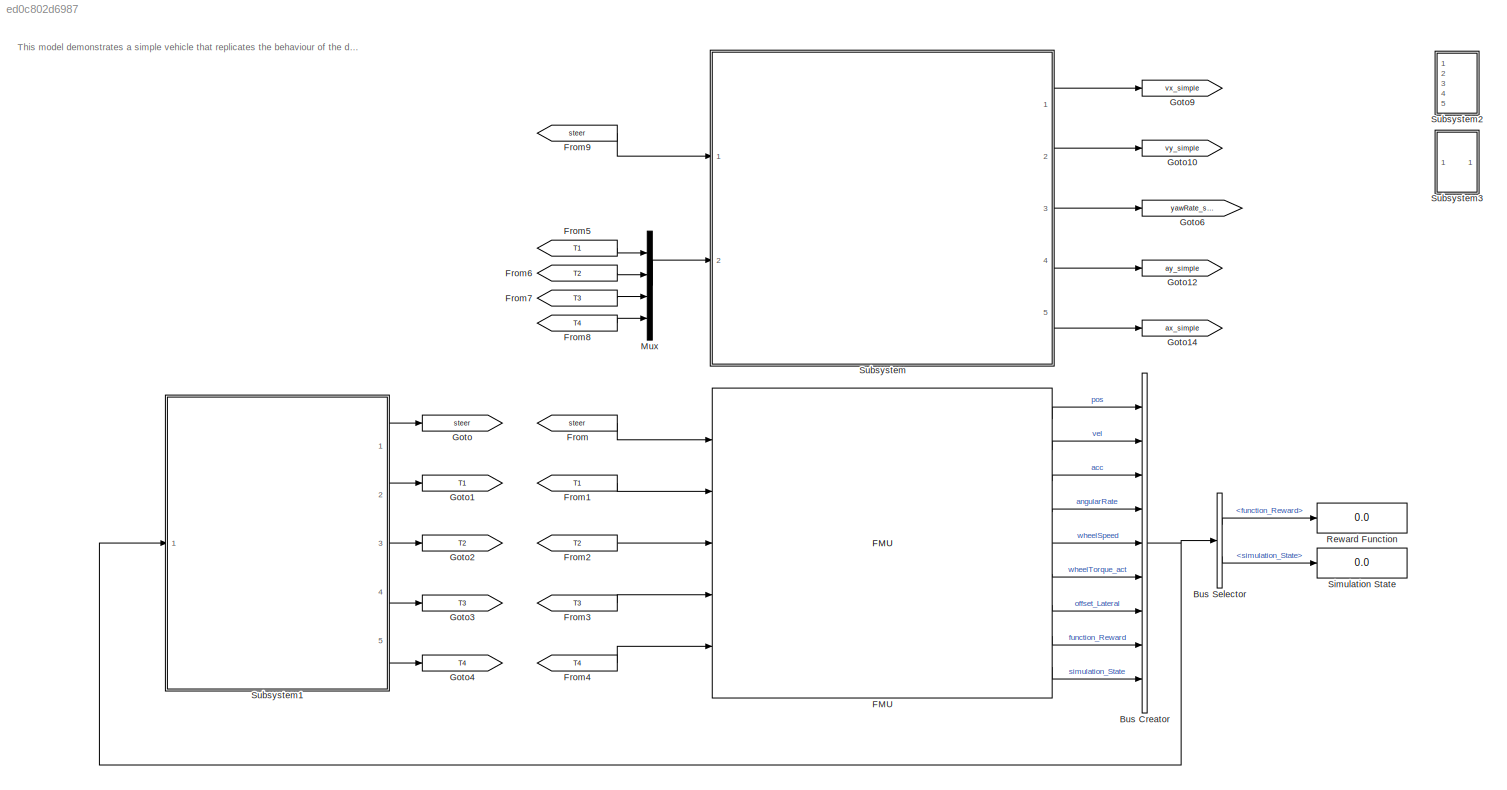
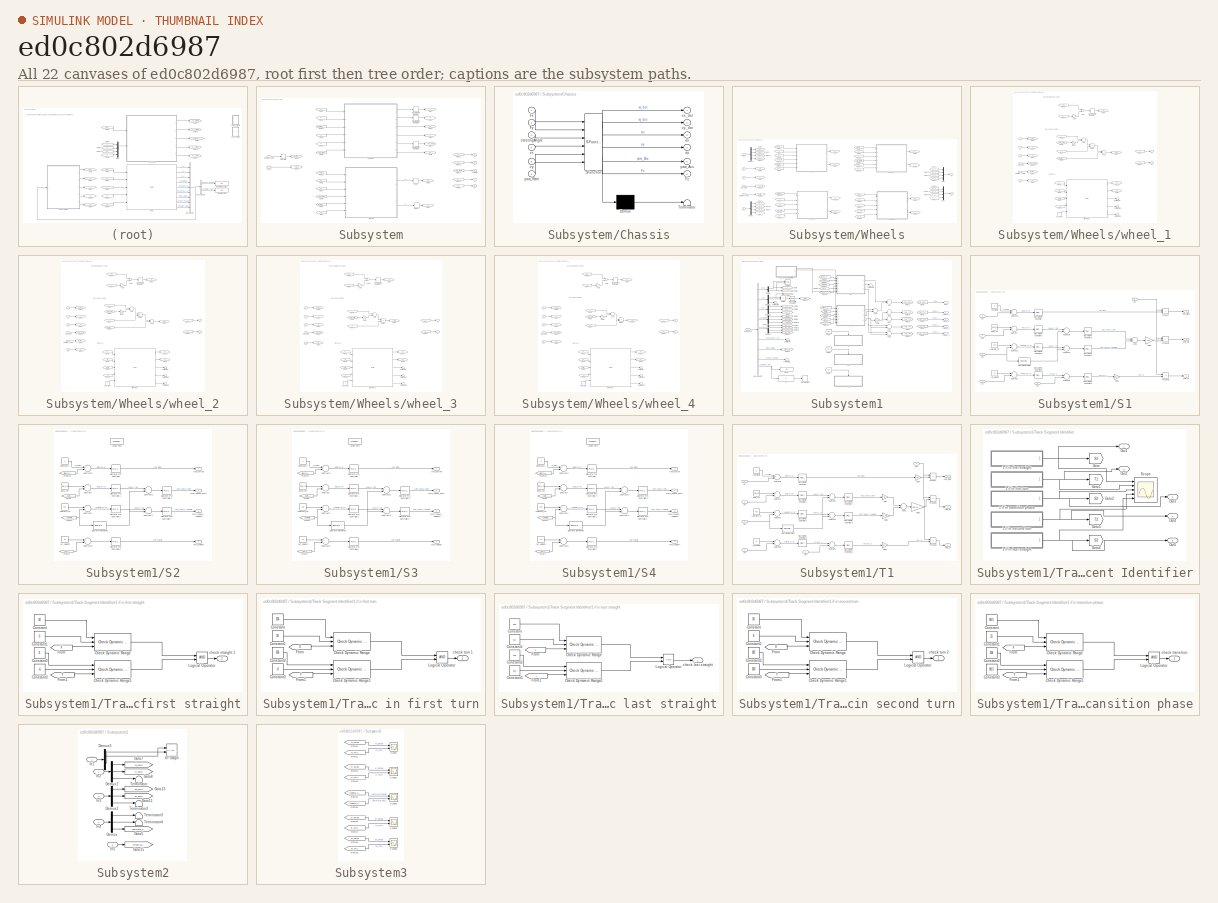
[diagram: thumbnail index - all 22 canvases of the model, root first then tree order]
MODEL slx_ed0c802d6987
KIND model
CONFIG AbsTol = auto
CONFIG EnableMultiTasking = off
CONFIG FixedStep = 0.01
CONFIG MaxStep = auto
CONFIG MinStep = auto
CONFIG RelTol = 1e-3
CONFIG SampleTimeConstraint = Unconstrained
CONFIG Solver = FixedStepAuto
CONFIG SolverName = FixedStepAuto
CONFIG StartTime = 0.0
CONFIG StopTime = 15
BLOCK [BusCreator] Bus Creator
  DisplayOption = bar
  InheritFromInputs = on
  Inputs = 9
  Ports = [9, 1]
BLOCK [BusSelector] Bus Selector
  OutputAsBus = off
  OutputSignals = function_Reward,simulation_State
  Ports = [1, 2]
BLOCK [FMU] FMU
  FMUMode = CoSimulation
  FMUName = MED2018_VehicleModel.fmu
  FMUSampleTime = -1
  MaskDisplay = if (exist([Simulink.fileGenControl('get','CacheFolder') '\slprj\_fmu\927a4232b314fe75ed86affe217e189d\MED2018_VehicleModel\model.png'],'file'))\n    image([Simulink.fileGenControl('get','CacheFolder') '\slprj\_fmu\927a4232b314fe75ed86affe217e189d\MED2018_VehicleModel\model.png']);\n    text(0.03, 0.97, 'MED2018.VehicleModel', 'horizontalAlignment', 'left', 'verticalAlignment', 'top');\nelse\n    disp(...<+596ch>
  MaskPromptString = Communication StepsizeCommunication stepsize between FMU and Simulink
  MaskType = MED2018.VehicleModel [Co-Simulation, v2.0]
  Ports = [5, 9]
BLOCK [From] From
  GotoTag = steer
BLOCK [From] From1
  GotoTag = T1
BLOCK [From] From2
  GotoTag = T2
BLOCK [From] From3
  GotoTag = T3
BLOCK [From] From4
  GotoTag = T4
BLOCK [From] From5
  Commented = on
  GotoTag = T1
BLOCK [From] From6
  Commented = on
  GotoTag = T2
BLOCK [From] From7
  Commented = on
  GotoTag = T3
BLOCK [From] From8
  Commented = on
  GotoTag = T4
BLOCK [From] From9
  Commented = on
  GotoTag = steer
BLOCK [Goto] Goto
  GotoTag = steer
BLOCK [Goto] Goto1
  GotoTag = T1
BLOCK [Goto] Goto10
  Commented = on
  GotoTag = vy_simple
BLOCK [Goto] Goto12
  Commented = on
  GotoTag = ay_simple
BLOCK [Goto] Goto14
  Commented = on
  GotoTag = ax_simple
BLOCK [Goto] Goto2
  GotoTag = T2
BLOCK [Goto] Goto3
  GotoTag = T3
BLOCK [Goto] Goto4
  GotoTag = T4
BLOCK [Goto] Goto6
  Commented = on
  GotoTag = yawRate_simple
BLOCK [Goto] Goto9
  Commented = on
  GotoTag = vx_simple
BLOCK [Mux] Mux
  Commented = on
  DisplayOption = bar
  Ports = [4, 1]
BLOCK [Display] Reward Function
  Decimation = 1
  Ports = [1]
BLOCK [Display] Simulation State
  Decimation = 1
  Ports = [1]
BLOCK [SubSystem] Subsystem
  Commented = on
  Ports = [2, 5]
  RequestExecContextInheritance = off
  Variant = off
BLOCK [SubSystem] Subsystem/Chassis
  ErrorFcn = Stateflow.Translate.translate
  PermitHierarchicalResolution = ExplicitOnly
  Ports = [6, 6]
  RequestExecContextInheritance = off
  SFBlockType = MATLAB Function
  TreatAsAtomicUnit = on
  Variant = off
BLOCK [Demux] Subsystem/Chassis/ Demux 
  Outputs = 1
  Ports = [1, 1]
BLOCK [S-Function] Subsystem/Chassis/ SFunction 
  EnableBusSupport = on
  FunctionName = sf_sfun
  Parameters = Izz,g,h,lf,lr,m,tf,tr
  PortCounts = [6 7]
  Ports = [6, 7]
  SFcnIsStateOwnerBlock = off
  SFunctionDeploymentMode = off
  Tag = Stateflow S-Function simpleVehicleModel_Trial1 2
BLOCK [Terminator] Subsystem/Chassis/ Terminator 
BLOCK [Inport] Subsystem/Chassis/Fx
  IconDisplay = Port number
BLOCK [Inport] Subsystem/Chassis/Fy
  IconDisplay = Port number
  Port = 2
BLOCK [Outport] Subsystem/Chassis/Fz
  IconDisplay = Port number
  Port = 6
BLOCK [Outport] Subsystem/Chassis/ax
  IconDisplay = Port number
  Port = 3
BLOCK [Outport] Subsystem/Chassis/ay
  IconDisplay = Port number
  Port = 4
BLOCK [Inport] Subsystem/Chassis/steeringAngle
  IconDisplay = Port number
  Port = 3
BLOCK [Inport] Subsystem/Chassis/vx
  IconDisplay = Port number
  Port = 4
BLOCK [Outport] Subsystem/Chassis/vx_dot
  IconDisplay = Port number
BLOCK [Inport] Subsystem/Chassis/vy
  IconDisplay = Port number
  Port = 5
BLOCK [Outport] Subsystem/Chassis/vy_dot
  IconDisplay = Port number
  Port = 2
BLOCK [Outport] Subsystem/Chassis/yaw_Acc
  IconDisplay = Port number
  Port = 5
BLOCK [Inport] Subsystem/Chassis/yaw_Rate
  IconDisplay = Port number
  Port = 6
BLOCK [Delay] Subsystem/Delay
  DelayLength = 1
  InitialCondition = [m*g*lr/(lf+lr)/2;m*g*lr/(lf+lr)/2;m*g*lf/(lf+lr)/2;m*g*lf/(lf+lr)/2]
  InputPortMap = u0
  Ports = [1, 1]
BLOCK [Delay] Subsystem/Delay1
  DelayLength = 1
  InitialCondition = [m*g*lr/(lf+lr)/2;m*g*lr/(lf+lr)/2;m*g*lf/(lf+lr)/2;m*g*lf/(lf+lr)/2]
  InputPortMap = u0
  Ports = [1, 1]
BLOCK [DiscreteIntegrator] Subsystem/Discrete-Time Integrator
  ICPrevOutput = DiscIntNeverNeededParam
  ICPrevScaledInput = DiscIntNeverNeededParam
  InitialCondition = 60*5/18
  InitialConditionSetting = State (most efficient)
  Ports = [1, 1]
  SampleTime = -1
BLOCK [DiscreteIntegrator] Subsystem/Discrete-Time Integrator1
  ICPrevOutput = DiscIntNeverNeededParam
  ICPrevScaledInput = DiscIntNeverNeededParam
  InitialConditionSetting = State (most efficient)
  Ports = [1, 1]
  SampleTime = -1
BLOCK [DiscreteIntegrator] Subsystem/Discrete-Time Integrator2
  ICPrevOutput = DiscIntNeverNeededParam
  ICPrevScaledInput = DiscIntNeverNeededParam
  InitialConditionSetting = State (most efficient)
  Ports = [1, 1]
  SampleTime = -1
BLOCK [From] Subsystem/From
  GotoTag = Fz
BLOCK [From] Subsystem/From1
  GotoTag = Fx
BLOCK [From] Subsystem/From10
  GotoTag = Torque
BLOCK [From] Subsystem/From11
  GotoTag = steering_Angle
BLOCK [From] Subsystem/From12
  GotoTag = vx
BLOCK [From] Subsystem/From13
  GotoTag = vy
BLOCK [From] Subsystem/From14
  GotoTag = yaw_Rate
BLOCK [From] Subsystem/From15
  GotoTag = ay
BLOCK [From] Subsystem/From16
  GotoTag = ax
BLOCK [From] Subsystem/From2
  GotoTag = Fy
BLOCK [From] Subsystem/From3
  GotoTag = vx
BLOCK [From] Subsystem/From4
  GotoTag = vy
BLOCK [From] Subsystem/From5
  GotoTag = yaw_Rate
BLOCK [From] Subsystem/From6
  GotoTag = vx
BLOCK [From] Subsystem/From7
  GotoTag = vy
BLOCK [From] Subsystem/From8
  GotoTag = yaw_Rate
BLOCK [From] Subsystem/From9
  GotoTag = steering_Angle
BLOCK [Goto] Subsystem/Goto
  GotoTag = Fz
BLOCK [Goto] Subsystem/Goto1
  GotoTag = vy
BLOCK [Goto] Subsystem/Goto2
  GotoTag = vx
BLOCK [Goto] Subsystem/Goto3
  GotoTag = yaw_Rate
BLOCK [Goto] Subsystem/Goto4
  GotoTag = Fy
BLOCK [Goto] Subsystem/Goto5
  GotoTag = Fx
BLOCK [Goto] Subsystem/Goto6
  GotoTag = steering_Angle
BLOCK [Goto] Subsystem/Goto7
  GotoTag = Torque
BLOCK [Goto] Subsystem/Goto8
  GotoTag = ay
BLOCK [Goto] Subsystem/Goto9
  GotoTag = ax
BLOCK [RateLimiter] Subsystem/Rate Limiter
  FallingSlewLimit = -500*pi/180/12
  RisingSlewLimit = 500*pi/180/12
  SampleTimeMode = inherited
BLOCK [Inport] Subsystem/Torque
  IconDisplay = Port number
  Port = 2
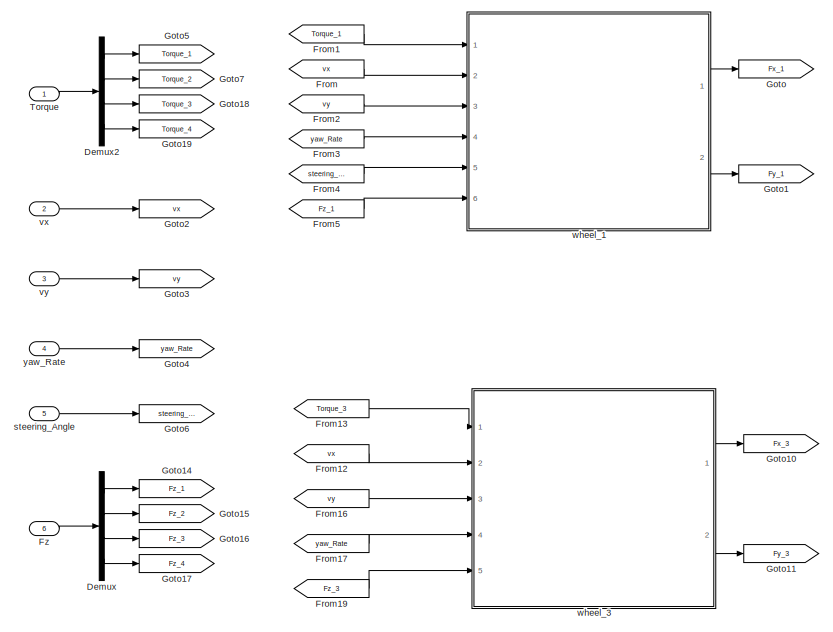
[diagram: Subsystem/Wheels - part 1/2, left side, full height]
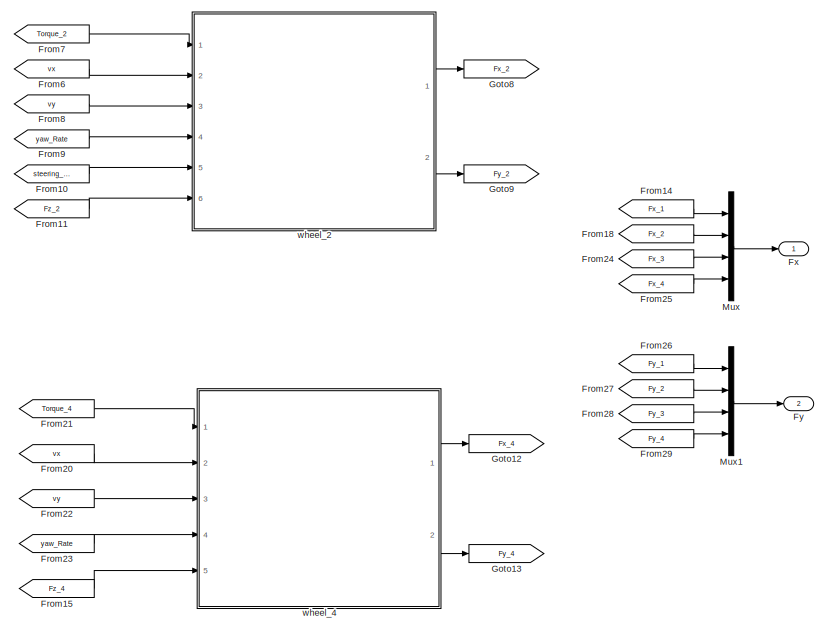
[diagram: Subsystem/Wheels - part 2/2, right side, full height]
BLOCK [SubSystem] Subsystem/Wheels
  Ports = [6, 2]
  Priority = 0
  RequestExecContextInheritance = off
  Variant = off
BLOCK [Demux] Subsystem/Wheels/Demux
  DisplayOption = bar
  Ports = [1, 4]
BLOCK [Demux] Subsystem/Wheels/Demux2
  DisplayOption = bar
  Ports = [1, 4]
BLOCK [From] Subsystem/Wheels/From
  GotoTag = vx
BLOCK [From] Subsystem/Wheels/From1
  GotoTag = Torque_1
BLOCK [From] Subsystem/Wheels/From10
  GotoTag = steering_Angle
BLOCK [From] Subsystem/Wheels/From11
  GotoTag = Fz_2
BLOCK [From] Subsystem/Wheels/From12
  GotoTag = vx
BLOCK [From] Subsystem/Wheels/From13
  GotoTag = Torque_3
BLOCK [From] Subsystem/Wheels/From14
  GotoTag = Fx_1
BLOCK [From] Subsystem/Wheels/From15
  GotoTag = Fz_4
BLOCK [From] Subsystem/Wheels/From16
  GotoTag = vy
BLOCK [From] Subsystem/Wheels/From17
  GotoTag = yaw_Rate
BLOCK [From] Subsystem/Wheels/From18
  GotoTag = Fx_2
BLOCK [From] Subsystem/Wheels/From19
  GotoTag = Fz_3
BLOCK [From] Subsystem/Wheels/From2
  GotoTag = vy
BLOCK [From] Subsystem/Wheels/From20
  GotoTag = vx
BLOCK [From] Subsystem/Wheels/From21
  GotoTag = Torque_4
BLOCK [From] Subsystem/Wheels/From22
  GotoTag = vy
BLOCK [From] Subsystem/Wheels/From23
  GotoTag = yaw_Rate
BLOCK [From] Subsystem/Wheels/From24
  GotoTag = Fx_3
BLOCK [From] Subsystem/Wheels/From25
  GotoTag = Fx_4
BLOCK [From] Subsystem/Wheels/From26
  GotoTag = Fy_1
BLOCK [From] Subsystem/Wheels/From27
  GotoTag = Fy_2
BLOCK [From] Subsystem/Wheels/From28
  GotoTag = Fy_3
BLOCK [From] Subsystem/Wheels/From29
  GotoTag = Fy_4
BLOCK [From] Subsystem/Wheels/From3
  GotoTag = yaw_Rate
BLOCK [From] Subsystem/Wheels/From4
  GotoTag = steering_Angle
BLOCK [From] Subsystem/Wheels/From5
  GotoTag = Fz_1
BLOCK [From] Subsystem/Wheels/From6
  GotoTag = vx
BLOCK [From] Subsystem/Wheels/From7
  GotoTag = Torque_2
BLOCK [From] Subsystem/Wheels/From8
  GotoTag = vy
BLOCK [From] Subsystem/Wheels/From9
  GotoTag = yaw_Rate
BLOCK [Outport] Subsystem/Wheels/Fx
  IconDisplay = Port number
BLOCK [Outport] Subsystem/Wheels/Fy
  IconDisplay = Port number
  Port = 2
BLOCK [Inport] Subsystem/Wheels/Fz
  IconDisplay = Port number
  Port = 6
BLOCK [Goto] Subsystem/Wheels/Goto
  GotoTag = Fx_1
BLOCK [Goto] Subsystem/Wheels/Goto1
  GotoTag = Fy_1
BLOCK [Goto] Subsystem/Wheels/Goto10
  GotoTag = Fx_3
BLOCK [Goto] Subsystem/Wheels/Goto11
  GotoTag = Fy_3
BLOCK [Goto] Subsystem/Wheels/Goto12
  GotoTag = Fx_4
BLOCK [Goto] Subsystem/Wheels/Goto13
  GotoTag = Fy_4
BLOCK [Goto] Subsystem/Wheels/Goto14
  GotoTag = Fz_1
BLOCK [Goto] Subsystem/Wheels/Goto15
  GotoTag = Fz_2
BLOCK [Goto] Subsystem/Wheels/Goto16
  GotoTag = Fz_3
BLOCK [Goto] Subsystem/Wheels/Goto17
  GotoTag = Fz_4
BLOCK [Goto] Subsystem/Wheels/Goto18
  GotoTag = Torque_3
BLOCK [Goto] Subsystem/Wheels/Goto19
  GotoTag = Torque_4
BLOCK [Goto] Subsystem/Wheels/Goto2
  GotoTag = vx
BLOCK [Goto] Subsystem/Wheels/Goto3
  GotoTag = vy
BLOCK [Goto] Subsystem/Wheels/Goto4
  GotoTag = yaw_Rate
BLOCK [Goto] Subsystem/Wheels/Goto5
  GotoTag = Torque_1
BLOCK [Goto] Subsystem/Wheels/Goto6
  GotoTag = steering_Angle
BLOCK [Goto] Subsystem/Wheels/Goto7
  GotoTag = Torque_2
BLOCK [Goto] Subsystem/Wheels/Goto8
  GotoTag = Fx_2
BLOCK [Goto] Subsystem/Wheels/Goto9
  GotoTag = Fy_2
BLOCK [Mux] Subsystem/Wheels/Mux
  DisplayOption = bar
  Ports = [4, 1]
BLOCK [Mux] Subsystem/Wheels/Mux1
  DisplayOption = bar
  Ports = [4, 1]
BLOCK [Inport] Subsystem/Wheels/Torque
  IconDisplay = Port number
BLOCK [Inport] Subsystem/Wheels/steering_Angle
  IconDisplay = Port number
  Port = 5
BLOCK [Inport] Subsystem/Wheels/vx
  IconDisplay = Port number
  Port = 2
BLOCK [Inport] Subsystem/Wheels/vy
  IconDisplay = Port number
  Port = 3
BLOCK [SubSystem] Subsystem/Wheels/wheel_1
  Ports = [6, 2]
  RequestExecContextInheritance = off
  Variant = off
BLOCK [Sum] Subsystem/Wheels/wheel_1/Add
  InputSameDT = off
  Inputs = --
  OutDataTypeStr = Inherit: Inherit via internal rule
  Ports = [2, 1]
  SaturateOnIntegerOverflow = off
BLOCK [Sum] Subsystem/Wheels/wheel_1/Add1
  InputSameDT = off
  OutDataTypeStr = Inherit: Inherit via internal rule
  Ports = [2, 1]
  SaturateOnIntegerOverflow = off
BLOCK [Constant] Subsystem/Wheels/wheel_1/Constant
  Value = 0
BLOCK [DiscreteIntegrator] Subsystem/Wheels/wheel_1/Discrete-Time Integrator
  ICPrevOutput = DiscIntNeverNeededParam
  ICPrevScaledInput = DiscIntNeverNeededParam
  InitialConditionSetting = State (most efficient)
  Ports = [1, 1]
  SampleTime = -1
BLOCK [Product] Subsystem/Wheels/wheel_1/Divide
  InputSameDT = off
  Inputs = */
  OutDataTypeStr = Inherit: Inherit via internal rule
  Ports = [2, 1]
  RndMeth = Floor
  SaturateOnIntegerOverflow = off
BLOCK [From] Subsystem/Wheels/wheel_1/From1
  GotoTag = vx
BLOCK [From] Subsystem/Wheels/wheel_1/From10
  GotoTag = Fz
BLOCK [From] Subsystem/Wheels/wheel_1/From11
  GotoTag = Fx
BLOCK [From] Subsystem/Wheels/wheel_1/From12
  GotoTag = Fy
BLOCK [From] Subsystem/Wheels/wheel_1/From2
  GotoTag = Torque
BLOCK [From] Subsystem/Wheels/wheel_1/From3
  GotoTag = w
BLOCK [From] Subsystem/Wheels/wheel_1/From4
  GotoTag = Fx
BLOCK [From] Subsystem/Wheels/wheel_1/From5
  GotoTag = vy
BLOCK [From] Subsystem/Wheels/wheel_1/From6
  GotoTag = yaw_Rate
BLOCK [From] Subsystem/Wheels/wheel_1/From7
  GotoTag = vx
BLOCK [From] Subsystem/Wheels/wheel_1/From8
  GotoTag = steering_Angle
BLOCK [From] Subsystem/Wheels/wheel_1/From9
  GotoTag = beta
BLOCK [Outport] Subsystem/Wheels/wheel_1/Fx
  IconDisplay = Port number
BLOCK [Outport] Subsystem/Wheels/wheel_1/Fy
  IconDisplay = Port number
  Port = 2
BLOCK [Inport] Subsystem/Wheels/wheel_1/Fz
  IconDisplay = Port number
  Port = 6
BLOCK [Gain] Subsystem/Wheels/wheel_1/Gain
  Gain = r
  OutDataTypeStr = Inherit: Inherit via internal rule
  ParamDataTypeStr = Inherit: Inherit via internal rule
  SaturateOnIntegerOverflow = off
BLOCK [Gain] Subsystem/Wheels/wheel_1/Gain1
  Gain = lf
  OutDataTypeStr = Inherit: Inherit via internal rule
  ParamDataTypeStr = Inherit: Inherit via internal rule
  SaturateOnIntegerOverflow = off
BLOCK [Goto] Subsystem/Wheels/wheel_1/Goto1
  GotoTag = vx
BLOCK [Goto] Subsystem/Wheels/wheel_1/Goto10
  GotoTag = Fx
BLOCK [Goto] Subsystem/Wheels/wheel_1/Goto2
  GotoTag = vy
BLOCK [Goto] Subsystem/Wheels/wheel_1/Goto3
  GotoTag = yaw_Rate
BLOCK [Goto] Subsystem/Wheels/wheel_1/Goto4
  GotoTag = steering_Angle
BLOCK [Goto] Subsystem/Wheels/wheel_1/Goto5
  GotoTag = Fz
BLOCK [Goto] Subsystem/Wheels/wheel_1/Goto6
  GotoTag = w
BLOCK [Goto] Subsystem/Wheels/wheel_1/Goto7
  GotoTag = beta
BLOCK [Goto] Subsystem/Wheels/wheel_1/Goto8
  GotoTag = Torque
BLOCK [Goto] Subsystem/Wheels/wheel_1/Goto9
  GotoTag = Fy
BLOCK [Sum] Subsystem/Wheels/wheel_1/Sum
  InputSameDT = off
  Inputs = +-
  OutDataTypeStr = Inherit: Inherit via internal rule
  Ports = [2, 1]
  SaturateOnIntegerOverflow = off
BLOCK [Inport] Subsystem/Wheels/wheel_1/T
  IconDisplay = Port number
BLOCK [Terminator] Subsystem/Wheels/wheel_1/Terminator
BLOCK [Terminator] Subsystem/Wheels/wheel_1/Terminator1
BLOCK [Terminator] Subsystem/Wheels/wheel_1/Terminator2
BLOCK [Inport] Subsystem/Wheels/wheel_1/steering_Angle
  IconDisplay = Port number
  Port = 5
BLOCK [FMU] Subsystem/Wheels/wheel_1/tireForces
  FMUMode = CoSimulation
  FMUName = MED2018_TireModel.fmu
  FMUSampleTime = -1
  MaskDisplay = disp('TyreFMUContainer');\nport_label('output',1,'Fx');\nport_label('output',2,'Fy');\nport_label('output',3,'Mz');\nport_label('output',4,'r');\nport_label('output',5,'Mx');\nport_label('input',1,'vx');\nport_label('input',2,'w');\nport_label('input',3,'beta');\nport_label('input',4,'Fz');\nport_label('input',5,'camber');  <repeated x4 — deduplicated; at blocks: tireForces>
  MaskPromptString = Communication StepsizeCommunication stepsize between FMU and Simulink
  MaskType = TyreFMUContainer [Co-Simulation, v2.0]
  Ports = [5, 5]
BLOCK [Inport] Subsystem/Wheels/wheel_1/vx
  IconDisplay = Port number
  Port = 2
BLOCK [Inport] Subsystem/Wheels/wheel_1/vy
  IconDisplay = Port number
  Port = 3
BLOCK [Inport] Subsystem/Wheels/wheel_1/yaw_Rate
  IconDisplay = Port number
  Port = 4
BLOCK [SubSystem] Subsystem/Wheels/wheel_2
  Ports = [6, 2]
  RequestExecContextInheritance = off
  Variant = off
BLOCK [Sum] Subsystem/Wheels/wheel_2/Add
  InputSameDT = off
  Inputs = --
  OutDataTypeStr = Inherit: Inherit via internal rule
  Ports = [2, 1]
  SaturateOnIntegerOverflow = off
BLOCK [Sum] Subsystem/Wheels/wheel_2/Add1
  InputSameDT = off
  OutDataTypeStr = Inherit: Inherit via internal rule
  Ports = [2, 1]
  SaturateOnIntegerOverflow = off
BLOCK [Constant] Subsystem/Wheels/wheel_2/Constant
  Value = 0
BLOCK [DiscreteIntegrator] Subsystem/Wheels/wheel_2/Discrete-Time Integrator
  ICPrevOutput = DiscIntNeverNeededParam
  ICPrevScaledInput = DiscIntNeverNeededParam
  InitialConditionSetting = State (most efficient)
  Ports = [1, 1]
  SampleTime = -1
BLOCK [Product] Subsystem/Wheels/wheel_2/Divide
  InputSameDT = off
  Inputs = */
  OutDataTypeStr = Inherit: Inherit via internal rule
  Ports = [2, 1]
  RndMeth = Floor
  SaturateOnIntegerOverflow = off
BLOCK [From] Subsystem/Wheels/wheel_2/From1
  GotoTag = vx
BLOCK [From] Subsystem/Wheels/wheel_2/From10
  GotoTag = Fz
BLOCK [From] Subsystem/Wheels/wheel_2/From11
  GotoTag = Fx
BLOCK [From] Subsystem/Wheels/wheel_2/From12
  GotoTag = Fy
BLOCK [From] Subsystem/Wheels/wheel_2/From2
  GotoTag = Torque
BLOCK [From] Subsystem/Wheels/wheel_2/From3
  GotoTag = w
BLOCK [From] Subsystem/Wheels/wheel_2/From4
  GotoTag = Fx
BLOCK [From] Subsystem/Wheels/wheel_2/From5
  GotoTag = vy
BLOCK [From] Subsystem/Wheels/wheel_2/From6
  GotoTag = yaw_Rate
BLOCK [From] Subsystem/Wheels/wheel_2/From7
  GotoTag = vx
BLOCK [From] Subsystem/Wheels/wheel_2/From8
  GotoTag = steering_Angle
BLOCK [From] Subsystem/Wheels/wheel_2/From9
  GotoTag = beta
BLOCK [Outport] Subsystem/Wheels/wheel_2/Fx
  IconDisplay = Port number
BLOCK [Outport] Subsystem/Wheels/wheel_2/Fy
  IconDisplay = Port number
  Port = 2
BLOCK [Inport] Subsystem/Wheels/wheel_2/Fz
  IconDisplay = Port number
  Port = 6
BLOCK [Gain] Subsystem/Wheels/wheel_2/Gain
  Gain = r
  OutDataTypeStr = Inherit: Inherit via internal rule
  ParamDataTypeStr = Inherit: Inherit via internal rule
  SaturateOnIntegerOverflow = off
BLOCK [Gain] Subsystem/Wheels/wheel_2/Gain1
  Gain = lf
  OutDataTypeStr = Inherit: Inherit via internal rule
  ParamDataTypeStr = Inherit: Inherit via internal rule
  SaturateOnIntegerOverflow = off
BLOCK [Goto] Subsystem/Wheels/wheel_2/Goto1
  GotoTag = vx
BLOCK [Goto] Subsystem/Wheels/wheel_2/Goto10
  GotoTag = Fx
BLOCK [Goto] Subsystem/Wheels/wheel_2/Goto2
  GotoTag = vy
BLOCK [Goto] Subsystem/Wheels/wheel_2/Goto3
  GotoTag = yaw_Rate
BLOCK [Goto] Subsystem/Wheels/wheel_2/Goto4
  GotoTag = steering_Angle
BLOCK [Goto] Subsystem/Wheels/wheel_2/Goto5
  GotoTag = Fz
BLOCK [Goto] Subsystem/Wheels/wheel_2/Goto6
  GotoTag = w
BLOCK [Goto] Subsystem/Wheels/wheel_2/Goto7
  GotoTag = beta
BLOCK [Goto] Subsystem/Wheels/wheel_2/Goto8
  GotoTag = Torque
BLOCK [Goto] Subsystem/Wheels/wheel_2/Goto9
  GotoTag = Fy
BLOCK [Sum] Subsystem/Wheels/wheel_2/Sum
  InputSameDT = off
  Inputs = +-
  OutDataTypeStr = Inherit: Inherit via internal rule
  Ports = [2, 1]
  SaturateOnIntegerOverflow = off
BLOCK [Inport] Subsystem/Wheels/wheel_2/T
  IconDisplay = Port number
BLOCK [Terminator] Subsystem/Wheels/wheel_2/Terminator
BLOCK [Terminator] Subsystem/Wheels/wheel_2/Terminator1
BLOCK [Terminator] Subsystem/Wheels/wheel_2/Terminator2
BLOCK [Inport] Subsystem/Wheels/wheel_2/steering_Angle
  IconDisplay = Port number
  Port = 5
BLOCK [FMU] Subsystem/Wheels/wheel_2/tireForces
  FMUMode = CoSimulation
  FMUName = MED2018_TireModel.fmu
  FMUSampleTime = -1
  MaskPromptString = Communication StepsizeCommunication stepsize between FMU and Simulink
  MaskType = TyreFMUContainer [Co-Simulation, v2.0]
  Ports = [5, 5]
BLOCK [Inport] Subsystem/Wheels/wheel_2/vx
  IconDisplay = Port number
  Port = 2
BLOCK [Inport] Subsystem/Wheels/wheel_2/vy
  IconDisplay = Port number
  Port = 3
BLOCK [Inport] Subsystem/Wheels/wheel_2/yaw_Rate
  IconDisplay = Port number
  Port = 4
BLOCK [SubSystem] Subsystem/Wheels/wheel_3
  Ports = [5, 2]
  RequestExecContextInheritance = off
  Variant = off
BLOCK [Sum] Subsystem/Wheels/wheel_3/Add
  InputSameDT = off
  Inputs = -+
  OutDataTypeStr = Inherit: Inherit via internal rule
  Ports = [2, 1]
  SaturateOnIntegerOverflow = off
BLOCK [Constant] Subsystem/Wheels/wheel_3/Constant
  Value = 0
BLOCK [DiscreteIntegrator] Subsystem/Wheels/wheel_3/Discrete-Time Integrator
  ICPrevOutput = DiscIntNeverNeededParam
  ICPrevScaledInput = DiscIntNeverNeededParam
  InitialConditionSetting = State (most efficient)
  Ports = [1, 1]
  SampleTime = -1
BLOCK [Product] Subsystem/Wheels/wheel_3/Divide
  InputSameDT = off
  Inputs = */
  OutDataTypeStr = Inherit: Inherit via internal rule
  Ports = [2, 1]
  RndMeth = Floor
  SaturateOnIntegerOverflow = off
BLOCK [From] Subsystem/Wheels/wheel_3/From1
  GotoTag = vx
BLOCK [From] Subsystem/Wheels/wheel_3/From10
  GotoTag = Fz
BLOCK [From] Subsystem/Wheels/wheel_3/From11
  GotoTag = Fx
BLOCK [From] Subsystem/Wheels/wheel_3/From12
  GotoTag = Fy
BLOCK [From] Subsystem/Wheels/wheel_3/From2
  GotoTag = Torque
BLOCK [From] Subsystem/Wheels/wheel_3/From3
  GotoTag = w
BLOCK [From] Subsystem/Wheels/wheel_3/From4
  GotoTag = Fx
BLOCK [From] Subsystem/Wheels/wheel_3/From5
  GotoTag = vy
BLOCK [From] Subsystem/Wheels/wheel_3/From6
  GotoTag = yaw_Rate
BLOCK [From] Subsystem/Wheels/wheel_3/From7
  GotoTag = vx
BLOCK [From] Subsystem/Wheels/wheel_3/From9
  GotoTag = beta
BLOCK [Outport] Subsystem/Wheels/wheel_3/Fx
  IconDisplay = Port number
BLOCK [Outport] Subsystem/Wheels/wheel_3/Fy
  IconDisplay = Port number
  Port = 2
BLOCK [Inport] Subsystem/Wheels/wheel_3/Fz
  IconDisplay = Port number
  Port = 5
BLOCK [Gain] Subsystem/Wheels/wheel_3/Gain
  Gain = r
  OutDataTypeStr = Inherit: Inherit via internal rule
  ParamDataTypeStr = Inherit: Inherit via internal rule
  SaturateOnIntegerOverflow = off
BLOCK [Gain] Subsystem/Wheels/wheel_3/Gain1
  Gain = lr
  OutDataTypeStr = Inherit: Inherit via internal rule
  ParamDataTypeStr = Inherit: Inherit via internal rule
  SaturateOnIntegerOverflow = off
BLOCK [Goto] Subsystem/Wheels/wheel_3/Goto1
  GotoTag = vx
BLOCK [Goto] Subsystem/Wheels/wheel_3/Goto10
  GotoTag = Fx
BLOCK [Goto] Subsystem/Wheels/wheel_3/Goto2
  GotoTag = vy
BLOCK [Goto] Subsystem/Wheels/wheel_3/Goto3
  GotoTag = yaw_Rate
BLOCK [Goto] Subsystem/Wheels/wheel_3/Goto5
  GotoTag = Fz
BLOCK [Goto] Subsystem/Wheels/wheel_3/Goto6
  GotoTag = w
BLOCK [Goto] Subsystem/Wheels/wheel_3/Goto7
  GotoTag = beta
BLOCK [Goto] Subsystem/Wheels/wheel_3/Goto8
  GotoTag = Torque
BLOCK [Goto] Subsystem/Wheels/wheel_3/Goto9
  GotoTag = Fy
BLOCK [Sum] Subsystem/Wheels/wheel_3/Sum
  InputSameDT = off
  Inputs = +-
  OutDataTypeStr = Inherit: Inherit via internal rule
  Ports = [2, 1]
  SaturateOnIntegerOverflow = off
BLOCK [Inport] Subsystem/Wheels/wheel_3/T
  IconDisplay = Port number
BLOCK [Terminator] Subsystem/Wheels/wheel_3/Terminator
BLOCK [Terminator] Subsystem/Wheels/wheel_3/Terminator1
BLOCK [Terminator] Subsystem/Wheels/wheel_3/Terminator2
BLOCK [FMU] Subsystem/Wheels/wheel_3/tireForces
  FMUMode = CoSimulation
  FMUName = MED2018_TireModel.fmu
  FMUSampleTime = -1
  MaskPromptString = Communication StepsizeCommunication stepsize between FMU and Simulink
  MaskType = TyreFMUContainer [Co-Simulation, v2.0]
  Ports = [5, 5]
BLOCK [Inport] Subsystem/Wheels/wheel_3/vx
  IconDisplay = Port number
  Port = 2
BLOCK [Inport] Subsystem/Wheels/wheel_3/vy
  IconDisplay = Port number
  Port = 3
BLOCK [Inport] Subsystem/Wheels/wheel_3/yaw_Rate
  IconDisplay = Port number
  Port = 4
BLOCK [SubSystem] Subsystem/Wheels/wheel_4
  Ports = [5, 2]
  RequestExecContextInheritance = off
  Variant = off
BLOCK [Sum] Subsystem/Wheels/wheel_4/Add
  InputSameDT = off
  Inputs = -+
  OutDataTypeStr = Inherit: Inherit via internal rule
  Ports = [2, 1]
  SaturateOnIntegerOverflow = off
BLOCK [Constant] Subsystem/Wheels/wheel_4/Constant
  Value = 0
BLOCK [DiscreteIntegrator] Subsystem/Wheels/wheel_4/Discrete-Time Integrator
  ICPrevOutput = DiscIntNeverNeededParam
  ICPrevScaledInput = DiscIntNeverNeededParam
  InitialConditionSetting = State (most efficient)
  Ports = [1, 1]
  SampleTime = -1
BLOCK [Product] Subsystem/Wheels/wheel_4/Divide
  InputSameDT = off
  Inputs = */
  OutDataTypeStr = Inherit: Inherit via internal rule
  Ports = [2, 1]
  RndMeth = Floor
  SaturateOnIntegerOverflow = off
BLOCK [From] Subsystem/Wheels/wheel_4/From1
  GotoTag = vx
BLOCK [From] Subsystem/Wheels/wheel_4/From10
  GotoTag = Fz
BLOCK [From] Subsystem/Wheels/wheel_4/From11
  GotoTag = Fx
BLOCK [From] Subsystem/Wheels/wheel_4/From12
  GotoTag = Fy
BLOCK [From] Subsystem/Wheels/wheel_4/From2
  GotoTag = Torque
BLOCK [From] Subsystem/Wheels/wheel_4/From3
  GotoTag = w
BLOCK [From] Subsystem/Wheels/wheel_4/From4
  GotoTag = Fx
BLOCK [From] Subsystem/Wheels/wheel_4/From5
  GotoTag = vy
BLOCK [From] Subsystem/Wheels/wheel_4/From6
  GotoTag = yaw_Rate
BLOCK [From] Subsystem/Wheels/wheel_4/From7
  GotoTag = vx
BLOCK [From] Subsystem/Wheels/wheel_4/From9
  GotoTag = beta
BLOCK [Outport] Subsystem/Wheels/wheel_4/Fx
  IconDisplay = Port number
BLOCK [Outport] Subsystem/Wheels/wheel_4/Fy
  IconDisplay = Port number
  Port = 2
BLOCK [Inport] Subsystem/Wheels/wheel_4/Fz
  IconDisplay = Port number
  Port = 5
BLOCK [Gain] Subsystem/Wheels/wheel_4/Gain
  Gain = r
  OutDataTypeStr = Inherit: Inherit via internal rule
  ParamDataTypeStr = Inherit: Inherit via internal rule
  SaturateOnIntegerOverflow = off
BLOCK [Gain] Subsystem/Wheels/wheel_4/Gain1
  Gain = lr
  OutDataTypeStr = Inherit: Inherit via internal rule
  ParamDataTypeStr = Inherit: Inherit via internal rule
  SaturateOnIntegerOverflow = off
BLOCK [Goto] Subsystem/Wheels/wheel_4/Goto1
  GotoTag = vx
BLOCK [Goto] Subsystem/Wheels/wheel_4/Goto10
  GotoTag = Fx
BLOCK [Goto] Subsystem/Wheels/wheel_4/Goto2
  GotoTag = vy
BLOCK [Goto] Subsystem/Wheels/wheel_4/Goto3
  GotoTag = yaw_Rate
BLOCK [Goto] Subsystem/Wheels/wheel_4/Goto5
  GotoTag = Fz
BLOCK [Goto] Subsystem/Wheels/wheel_4/Goto6
  GotoTag = w
BLOCK [Goto] Subsystem/Wheels/wheel_4/Goto7
  GotoTag = beta
BLOCK [Goto] Subsystem/Wheels/wheel_4/Goto8
  GotoTag = Torque
BLOCK [Goto] Subsystem/Wheels/wheel_4/Goto9
  GotoTag = Fy
BLOCK [Sum] Subsystem/Wheels/wheel_4/Sum
  InputSameDT = off
  Inputs = +-
  OutDataTypeStr = Inherit: Inherit via internal rule
  Ports = [2, 1]
  SaturateOnIntegerOverflow = off
BLOCK [Inport] Subsystem/Wheels/wheel_4/T
  IconDisplay = Port number
BLOCK [Terminator] Subsystem/Wheels/wheel_4/Terminator
BLOCK [Terminator] Subsystem/Wheels/wheel_4/Terminator1
BLOCK [Terminator] Subsystem/Wheels/wheel_4/Terminator2
BLOCK [FMU] Subsystem/Wheels/wheel_4/tireForces
  FMUDebugLogging = on
  FMUMode = CoSimulation
  FMUName = MED2018_TireModel.fmu
  FMUSampleTime = -1
  MaskPromptString = Communication StepsizeCommunication stepsize between FMU and Simulink
  MaskType = TyreFMUContainer [Co-Simulation, v2.0]
  Ports = [5, 5]
BLOCK [Inport] Subsystem/Wheels/wheel_4/vx
  IconDisplay = Port number
  Port = 2
BLOCK [Inport] Subsystem/Wheels/wheel_4/vy
  IconDisplay = Port number
  Port = 3
BLOCK [Inport] Subsystem/Wheels/wheel_4/yaw_Rate
  IconDisplay = Port number
  Port = 4
BLOCK [Inport] Subsystem/Wheels/yaw_Rate
  IconDisplay = Port number
  Port = 4
BLOCK [Outport] Subsystem/ax
  IconDisplay = Port number
  Port = 5
BLOCK [Outport] Subsystem/ay
  IconDisplay = Port number
  Port = 4
BLOCK [Inport] Subsystem/steering_Angle
  IconDisplay = Port number
BLOCK [Outport] Subsystem/vx
  IconDisplay = Port number
BLOCK [Outport] Subsystem/vy
  IconDisplay = Port number
  Port = 2
BLOCK [Outport] Subsystem/yawRate
  IconDisplay = Port number
  Port = 3
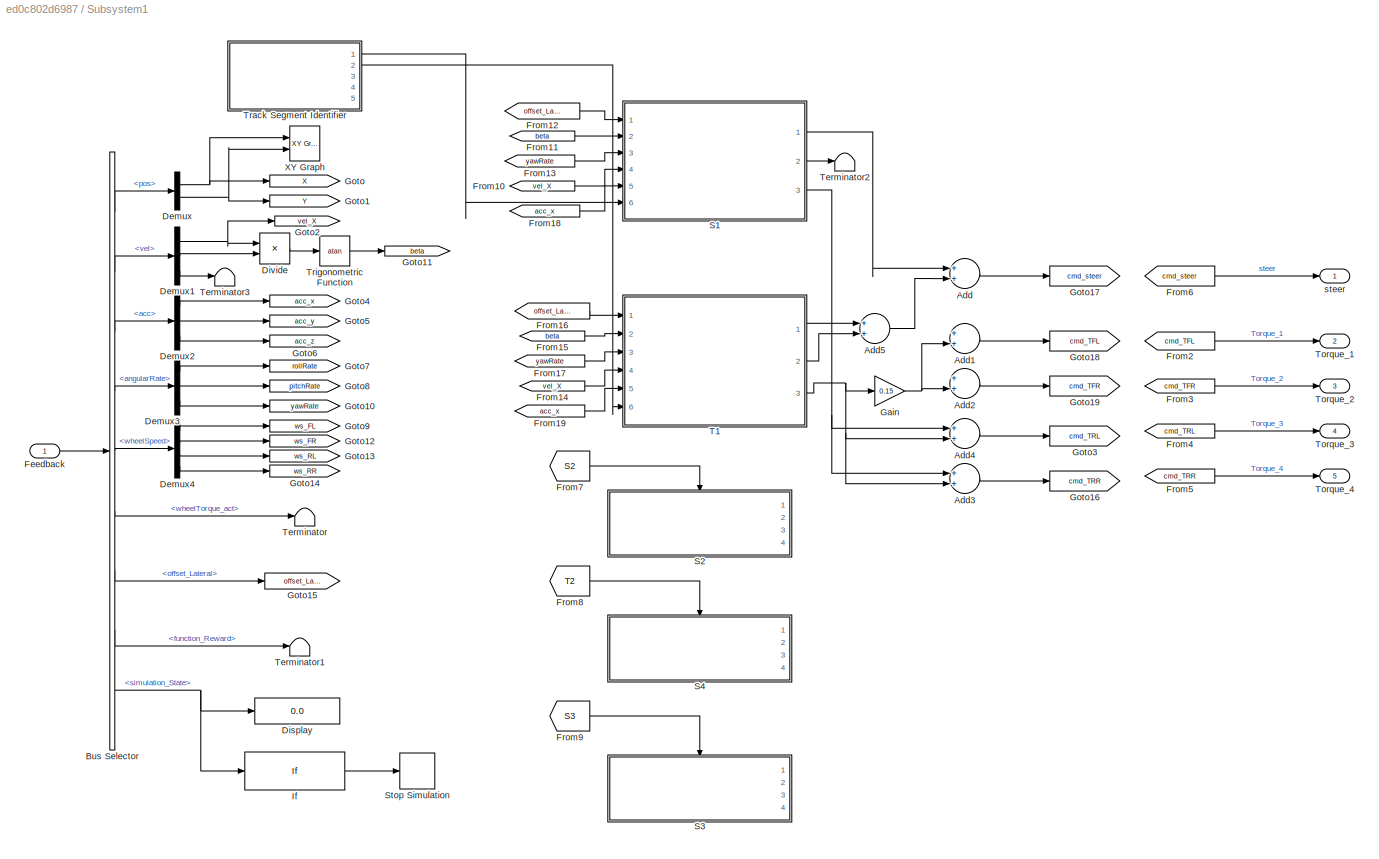
BLOCK [SubSystem] Subsystem1
  Ports = [1, 5]
  RequestExecContextInheritance = off
  Variant = off
BLOCK [Sum] Subsystem1/Add
  InputSameDT = off
  OutDataTypeStr = Inherit: Inherit via internal rule
  Ports = [2, 1]
  SaturateOnIntegerOverflow = off
BLOCK [Sum] Subsystem1/Add1
  InputSameDT = off
  OutDataTypeStr = Inherit: Inherit via internal rule
  Ports = [2, 1]
  SaturateOnIntegerOverflow = off
BLOCK [Sum] Subsystem1/Add2
  InputSameDT = off
  OutDataTypeStr = Inherit: Inherit via internal rule
  Ports = [2, 1]
  SaturateOnIntegerOverflow = off
BLOCK [Sum] Subsystem1/Add3
  InputSameDT = off
  OutDataTypeStr = Inherit: Inherit via internal rule
  Ports = [2, 1]
  SaturateOnIntegerOverflow = off
BLOCK [Sum] Subsystem1/Add4
  InputSameDT = off
  OutDataTypeStr = Inherit: Inherit via internal rule
  Ports = [2, 1]
  SaturateOnIntegerOverflow = off
BLOCK [Sum] Subsystem1/Add5
  InputSameDT = off
  OutDataTypeStr = Inherit: Inherit via internal rule
  Ports = [2, 1]
  SaturateOnIntegerOverflow = off
BLOCK [BusSelector] Subsystem1/Bus Selector
  OutputAsBus = off
  OutputSignals = pos,vel,acc,angularRate,wheelSpeed,wheelTorque_act,offset_Lateral,function_Reward,simulation_State
  Ports = [1, 9]
BLOCK [Demux] Subsystem1/Demux
  DisplayOption = bar
  Outputs = 2
  Ports = [1, 2]
BLOCK [Demux] Subsystem1/Demux1
  DisplayOption = bar
  Outputs = 3
  Ports = [1, 3]
BLOCK [Demux] Subsystem1/Demux2
  DisplayOption = bar
  Outputs = 3
  Ports = [1, 3]
BLOCK [Demux] Subsystem1/Demux3
  DisplayOption = bar
  Outputs = 3
  Ports = [1, 3]
BLOCK [Demux] Subsystem1/Demux4
  DisplayOption = bar
  Ports = [1, 4]
BLOCK [Display] Subsystem1/Display
  Decimation = 1
  Ports = [1]
BLOCK [Product] Subsystem1/Divide
  InputSameDT = off
  Inputs = */
  OutDataTypeStr = Inherit: Inherit via internal rule
  Ports = [2, 1]
  RndMeth = Floor
  SaturateOnIntegerOverflow = off
BLOCK [Inport] Subsystem1/Feedback
  IconDisplay = Port number
BLOCK [From] Subsystem1/From10
  GotoTag = vel_X
  TagVisibility = global
BLOCK [From] Subsystem1/From11
  GotoTag = beta
  TagVisibility = global
BLOCK [From] Subsystem1/From12
  GotoTag = offset_Lateral
  TagVisibility = global
BLOCK [From] Subsystem1/From13
  GotoTag = yawRate
  TagVisibility = global
BLOCK [From] Subsystem1/From14
  GotoTag = vel_X
  TagVisibility = global
BLOCK [From] Subsystem1/From15
  GotoTag = beta
  TagVisibility = global
BLOCK [From] Subsystem1/From16
  GotoTag = offset_Lateral
  TagVisibility = global
BLOCK [From] Subsystem1/From17
  GotoTag = yawRate
  TagVisibility = global
BLOCK [From] Subsystem1/From18
  GotoTag = acc_x
  TagVisibility = global
BLOCK [From] Subsystem1/From19
  GotoTag = acc_x
  TagVisibility = global
BLOCK [From] Subsystem1/From2
  GotoTag = cmd_TFL
  TagVisibility = global
BLOCK [From] Subsystem1/From3
  GotoTag = cmd_TFR
  TagVisibility = global
BLOCK [From] Subsystem1/From4
  GotoTag = cmd_TRL
  TagVisibility = global
BLOCK [From] Subsystem1/From5
  GotoTag = cmd_TRR
  TagVisibility = global
BLOCK [From] Subsystem1/From6
  GotoTag = cmd_steer
  TagVisibility = global
BLOCK [From] Subsystem1/From7
  Commented = on
  GotoTag = S2
  TagVisibility = global
BLOCK [From] Subsystem1/From8
  Commented = on
  GotoTag = T2
  TagVisibility = global
BLOCK [From] Subsystem1/From9
  Commented = on
  GotoTag = S3
  TagVisibility = global
BLOCK [Gain] Subsystem1/Gain
  Gain = 0.15
  OutDataTypeStr = Inherit: Inherit via internal rule
  ParamDataTypeStr = Inherit: Inherit via internal rule
  SaturateOnIntegerOverflow = off
BLOCK [Goto] Subsystem1/Goto
  GotoTag = X
  TagVisibility = global
BLOCK [Goto] Subsystem1/Goto1
  GotoTag = Y
  TagVisibility = global
BLOCK [Goto] Subsystem1/Goto10
  GotoTag = yawRate
  TagVisibility = global
BLOCK [Goto] Subsystem1/Goto11
  GotoTag = beta
  TagVisibility = global
BLOCK [Goto] Subsystem1/Goto12
  GotoTag = ws_FR
BLOCK [Goto] Subsystem1/Goto13
  GotoTag = ws_RL
BLOCK [Goto] Subsystem1/Goto14
  GotoTag = ws_RR
BLOCK [Goto] Subsystem1/Goto15
  GotoTag = offset_Lateral
  TagVisibility = global
BLOCK [Goto] Subsystem1/Goto16
  GotoTag = cmd_TRR
  TagVisibility = global
BLOCK [Goto] Subsystem1/Goto17
  GotoTag = cmd_steer
  TagVisibility = global
BLOCK [Goto] Subsystem1/Goto18
  GotoTag = cmd_TFL
  TagVisibility = global
BLOCK [Goto] Subsystem1/Goto19
  GotoTag = cmd_TFR
  TagVisibility = global
BLOCK [Goto] Subsystem1/Goto2
  GotoTag = vel_X
  TagVisibility = global
BLOCK [Goto] Subsystem1/Goto3
  GotoTag = cmd_TRL
  TagVisibility = global
BLOCK [Goto] Subsystem1/Goto4
  GotoTag = acc_x
  TagVisibility = global
BLOCK [Goto] Subsystem1/Goto5
  GotoTag = acc_y
BLOCK [Goto] Subsystem1/Goto6
  GotoTag = acc_z
BLOCK [Goto] Subsystem1/Goto7
  GotoTag = rollRate
BLOCK [Goto] Subsystem1/Goto8
  GotoTag = pitchRate
BLOCK [Goto] Subsystem1/Goto9
  GotoTag = ws_FL
BLOCK [If] Subsystem1/If
  Commented = on
  Ports = [1, 1]
  ShowElse = off
BLOCK [SubSystem] Subsystem1/S1
  Ports = [6, 3]
  RequestExecContextInheritance = off
  TreatAsAtomicUnit = on
  Variant = off
BLOCK [Sum] Subsystem1/S1/Add5
  InputSameDT = off
  OutDataTypeStr = Inherit: Inherit via internal rule
  Ports = [2, 1]
  SaturateOnIntegerOverflow = off
BLOCK [Constant] Subsystem1/S1/Constant4
  Value = 0
BLOCK [Reference] Subsystem1/S1/Discrete Derivative  REF=simulink/Discrete/Discrete Derivative
  Ports = [1, 1]
  SourceBlock = simulink/Discrete/Discrete Derivative
  SourceProductBaseCode = SL
  SourceProductName = Simulink
  SourceType = Discrete Derivative
BLOCK [Reference] Subsystem1/S1/Discrete PID Controller  REF=simulink/Continuous/PID Controller
  Ports = [1, 1]
  SourceBlock = simulink/Continuous/PID Controller
  SourceProductBaseCode = SL
  SourceProductName = Simulink
  SourceType = PID 1dof
BLOCK [Reference] Subsystem1/S1/Discrete PID Controller1  REF=simulink/Continuous/PID Controller
  Ports = [1, 1]
  SourceBlock = simulink/Continuous/PID Controller
  SourceProductBaseCode = SL
  SourceProductName = Simulink
  SourceType = PID 1dof
BLOCK [Reference] Subsystem1/S1/Discrete PID Controller2  REF=simulink/Continuous/PID Controller
  Ports = [1, 1]
  SourceBlock = simulink/Continuous/PID Controller
  SourceProductBaseCode = SL
  SourceProductName = Simulink
  SourceType = PID 1dof
BLOCK [Reference] Subsystem1/S1/Discrete PID Controller3  REF=simulink/Continuous/PID Controller
  Ports = [1, 1]
  SourceBlock = simulink/Continuous/PID Controller
  SourceProductBaseCode = SL
  SourceProductName = Simulink
  SourceType = PID 1dof
BLOCK [Reference] Subsystem1/S1/Discrete PID Controller4  REF=simulink/Continuous/PID Controller
  Ports = [1, 1]
  SourceBlock = simulink/Continuous/PID Controller
  SourceProductBaseCode = SL
  SourceProductName = Simulink
  SourceType = PID 1dof
BLOCK [Reference] Subsystem1/S1/Discrete PID Controller5  REF=simulink/Continuous/PID Controller
  Ports = [1, 1]
  SourceBlock = simulink/Continuous/PID Controller
  SourceProductBaseCode = SL
  SourceProductName = Simulink
  SourceType = PID 1dof
BLOCK [Reference] Subsystem1/S1/Discrete PID Controller6  REF=simulink/Continuous/PID Controller
  Ports = [1, 1]
  SourceBlock = simulink/Continuous/PID Controller
  SourceProductBaseCode = SL
  SourceProductName = Simulink
  SourceType = PID 1dof
BLOCK [Gain] Subsystem1/S1/Gain2
  Gain = m*r
  OutDataTypeStr = Inherit: Inherit via internal rule
  ParamDataTypeStr = Inherit: Inherit via internal rule
  SaturateOnIntegerOverflow = off
BLOCK [Gain] Subsystem1/S1/Gain3
  Gain = Izz
  OutDataTypeStr = Inherit: Inherit via internal rule
  ParamDataTypeStr = Inherit: Inherit via internal rule
  SaturateOnIntegerOverflow = off
BLOCK [Inport] Subsystem1/S1/In1
  IconDisplay = Port number
BLOCK [Inport] Subsystem1/S1/In2
  IconDisplay = Port number
  Port = 2
BLOCK [Inport] Subsystem1/S1/In3
  IconDisplay = Port number
  Port = 3
BLOCK [Inport] Subsystem1/S1/In4
  IconDisplay = Port number
  Port = 4
BLOCK [Inport] Subsystem1/S1/In5
  IconDisplay = Port number
  Port = 5
BLOCK [Inport] Subsystem1/S1/In6
  IconDisplay = Port number
  Port = 6
BLOCK [Product] Subsystem1/S1/Product
  InputSameDT = off
  OutDataTypeStr = Inherit: Inherit via internal rule
  Ports = [2, 1]
  RndMeth = Floor
  SaturateOnIntegerOverflow = off
BLOCK [Product] Subsystem1/S1/Product1
  InputSameDT = off
  OutDataTypeStr = Inherit: Inherit via internal rule
  Ports = [2, 1]
  RndMeth = Floor
  SaturateOnIntegerOverflow = off
BLOCK [Product] Subsystem1/S1/Product2
  InputSameDT = off
  OutDataTypeStr = Inherit: Inherit via internal rule
  Ports = [2, 1]
  RndMeth = Floor
  SaturateOnIntegerOverflow = off
BLOCK [Sum] Subsystem1/S1/Subtract
  InputSameDT = off
  Inputs = +-
  OutDataTypeStr = Inherit: Inherit via internal rule
  Ports = [2, 1]
  SaturateOnIntegerOverflow = off
BLOCK [Sum] Subsystem1/S1/Subtract1
  InputSameDT = off
  Inputs = +-
  OutDataTypeStr = Inherit: Inherit via internal rule
  Ports = [2, 1]
  SaturateOnIntegerOverflow = off
BLOCK [Sum] Subsystem1/S1/Subtract2
  InputSameDT = off
  Inputs = +-
  OutDataTypeStr = Inherit: Inherit via internal rule
  Ports = [2, 1]
  SaturateOnIntegerOverflow = off
BLOCK [Sum] Subsystem1/S1/Subtract3
  InputSameDT = off
  Inputs = +-
  OutDataTypeStr = Inherit: Inherit via internal rule
  Ports = [2, 1]
  SaturateOnIntegerOverflow = off
BLOCK [Sum] Subsystem1/S1/Subtract4
  InputSameDT = off
  Inputs = +-
  OutDataTypeStr = Inherit: Inherit via internal rule
  Ports = [2, 1]
  SaturateOnIntegerOverflow = off
BLOCK [Sum] Subsystem1/S1/Subtract5
  InputSameDT = off
  Inputs = +-
  OutDataTypeStr = Inherit: Inherit via internal rule
  Ports = [2, 1]
  SaturateOnIntegerOverflow = off
BLOCK [Sum] Subsystem1/S1/Subtract6
  InputSameDT = off
  Inputs = +-
  OutDataTypeStr = Inherit: Inherit via internal rule
  Ports = [2, 1]
  SaturateOnIntegerOverflow = off
BLOCK [Constant] Subsystem1/S1/beta_ref
  Value = beta_ref
BLOCK [Outport] Subsystem1/S1/cmd_Mz
  IconDisplay = Port number
  Port = 2
BLOCK [Outport] Subsystem1/S1/cmd_Tx
  IconDisplay = Port number
  Port = 3
BLOCK [Outport] Subsystem1/S1/cmd_offset
  IconDisplay = Port number
BLOCK [Constant] Subsystem1/S1/ref_velocity
  Value = vx
BLOCK [Constant] Subsystem1/S1/yawrate_ref
  Value = vx/r
BLOCK [SubSystem] Subsystem1/S2
  Commented = on
  Ports = [0, 4, 0, 0, 0, 0, 0, 1]
  RequestExecContextInheritance = off
  TreatAsAtomicUnit = on
  Variant = off
BLOCK [ActionPort] Subsystem1/S2/Action Port
BLOCK [Constant] Subsystem1/S2/Constant4
  Value = 0
BLOCK [Reference] Subsystem1/S2/Discrete Derivative  REF=simulink/Discrete/Discrete Derivative
  Ports = [1, 1]
  SourceBlock = simulink/Discrete/Discrete Derivative
  SourceProductBaseCode = SL
  SourceProductName = Simulink
  SourceType = Discrete Derivative
BLOCK [Reference] Subsystem1/S2/Discrete PID Controller  REF=simulink/Continuous/PID Controller
  Ports = [1, 1]
  SourceBlock = simulink/Continuous/PID Controller
  SourceProductBaseCode = SL
  SourceProductName = Simulink
  SourceType = PID 1dof
BLOCK [Reference] Subsystem1/S2/Discrete PID Controller1  REF=simulink/Continuous/PID Controller
  Ports = [1, 1]
  SourceBlock = simulink/Continuous/PID Controller
  SourceProductBaseCode = SL
  SourceProductName = Simulink
  SourceType = PID 1dof
BLOCK [Reference] Subsystem1/S2/Discrete PID Controller2  REF=simulink/Continuous/PID Controller
  Ports = [1, 1]
  SourceBlock = simulink/Continuous/PID Controller
  SourceProductBaseCode = SL
  SourceProductName = Simulink
  SourceType = PID 1dof
BLOCK [Reference] Subsystem1/S2/Discrete PID Controller3  REF=simulink/Continuous/PID Controller
  Ports = [1, 1]
  SourceBlock = simulink/Continuous/PID Controller
  SourceProductBaseCode = SL
  SourceProductName = Simulink
  SourceType = PID 1dof
BLOCK [Reference] Subsystem1/S2/Discrete PID Controller4  REF=simulink/Continuous/PID Controller
  Ports = [1, 1]
  SourceBlock = simulink/Continuous/PID Controller
  SourceProductBaseCode = SL
  SourceProductName = Simulink
  SourceType = PID 1dof
BLOCK [Reference] Subsystem1/S2/Discrete PID Controller5  REF=simulink/Continuous/PID Controller
  Ports = [1, 1]
  SourceBlock = simulink/Continuous/PID Controller
  SourceProductBaseCode = SL
  SourceProductName = Simulink
  SourceType = PID 1dof
BLOCK [From] Subsystem1/S2/From
  GotoTag = beta
  TagVisibility = global
BLOCK [From] Subsystem1/S2/From1
  GotoTag = yawRate
  TagVisibility = global
BLOCK [From] Subsystem1/S2/From2
  GotoTag = vel_X
  TagVisibility = global
BLOCK [From] Subsystem1/S2/From20
  GotoTag = offset_Lateral
  TagVisibility = global
BLOCK [Sum] Subsystem1/S2/Subtract
  InputSameDT = off
  Inputs = +-
  OutDataTypeStr = Inherit: Inherit via internal rule
  Ports = [2, 1]
  SaturateOnIntegerOverflow = off
BLOCK [Sum] Subsystem1/S2/Subtract1
  InputSameDT = off
  Inputs = +-
  OutDataTypeStr = Inherit: Inherit via internal rule
  Ports = [2, 1]
  SaturateOnIntegerOverflow = off
BLOCK [Sum] Subsystem1/S2/Subtract2
  InputSameDT = off
  Inputs = +-
  OutDataTypeStr = Inherit: Inherit via internal rule
  Ports = [2, 1]
  SaturateOnIntegerOverflow = off
BLOCK [Sum] Subsystem1/S2/Subtract3
  InputSameDT = off
  Inputs = +-
  OutDataTypeStr = Inherit: Inherit via internal rule
  Ports = [2, 1]
  SaturateOnIntegerOverflow = off
BLOCK [Sum] Subsystem1/S2/Subtract4
  InputSameDT = off
  Inputs = +-
  OutDataTypeStr = Inherit: Inherit via internal rule
  Ports = [2, 1]
  SaturateOnIntegerOverflow = off
BLOCK [Sum] Subsystem1/S2/Subtract5
  InputSameDT = off
  Inputs = +-
  OutDataTypeStr = Inherit: Inherit via internal rule
  Ports = [2, 1]
  SaturateOnIntegerOverflow = off
BLOCK [Constant] Subsystem1/S2/beta_ref
  Value = beta_ref
BLOCK [Outport] Subsystem1/S2/cmd_offset
  IconDisplay = Port number
BLOCK [Outport] Subsystem1/S2/cmd_velocity
  IconDisplay = Port number
  Port = 4
BLOCK [Outport] Subsystem1/S2/cmd_yawAcc_beta
  IconDisplay = Port number
  Port = 2
BLOCK [Outport] Subsystem1/S2/cmd_yawAcc_yawRate
  IconDisplay = Port number
  Port = 3
BLOCK [Constant] Subsystem1/S2/ref_velocity
  Value = vx
BLOCK [Constant] Subsystem1/S2/yawrate_ref
  Value = vx/r
BLOCK [SubSystem] Subsystem1/S3
  Commented = on
  Ports = [0, 4, 0, 0, 0, 0, 0, 1]
  RequestExecContextInheritance = off
  TreatAsAtomicUnit = on
  Variant = off
BLOCK [ActionPort] Subsystem1/S3/Action Port
BLOCK [Constant] Subsystem1/S3/Constant4
  Value = 0
BLOCK [Reference] Subsystem1/S3/Discrete Derivative  REF=simulink/Discrete/Discrete Derivative
  Ports = [1, 1]
  SourceBlock = simulink/Discrete/Discrete Derivative
  SourceProductBaseCode = SL
  SourceProductName = Simulink
  SourceType = Discrete Derivative
BLOCK [Reference] Subsystem1/S3/Discrete PID Controller  REF=simulink/Continuous/PID Controller
  Ports = [1, 1]
  SourceBlock = simulink/Continuous/PID Controller
  SourceProductBaseCode = SL
  SourceProductName = Simulink
  SourceType = PID 1dof
BLOCK [Reference] Subsystem1/S3/Discrete PID Controller1  REF=simulink/Continuous/PID Controller
  Ports = [1, 1]
  SourceBlock = simulink/Continuous/PID Controller
  SourceProductBaseCode = SL
  SourceProductName = Simulink
  SourceType = PID 1dof
BLOCK [Reference] Subsystem1/S3/Discrete PID Controller2  REF=simulink/Continuous/PID Controller
  Ports = [1, 1]
  SourceBlock = simulink/Continuous/PID Controller
  SourceProductBaseCode = SL
  SourceProductName = Simulink
  SourceType = PID 1dof
BLOCK [Reference] Subsystem1/S3/Discrete PID Controller3  REF=simulink/Continuous/PID Controller
  Ports = [1, 1]
  SourceBlock = simulink/Continuous/PID Controller
  SourceProductBaseCode = SL
  SourceProductName = Simulink
  SourceType = PID 1dof
BLOCK [Reference] Subsystem1/S3/Discrete PID Controller4  REF=simulink/Continuous/PID Controller
  Ports = [1, 1]
  SourceBlock = simulink/Continuous/PID Controller
  SourceProductBaseCode = SL
  SourceProductName = Simulink
  SourceType = PID 1dof
BLOCK [Reference] Subsystem1/S3/Discrete PID Controller5  REF=simulink/Continuous/PID Controller
  Ports = [1, 1]
  SourceBlock = simulink/Continuous/PID Controller
  SourceProductBaseCode = SL
  SourceProductName = Simulink
  SourceType = PID 1dof
BLOCK [From] Subsystem1/S3/From
  GotoTag = beta
  TagVisibility = global
BLOCK [From] Subsystem1/S3/From1
  GotoTag = yawRate
  TagVisibility = global
BLOCK [From] Subsystem1/S3/From2
  GotoTag = vel_X
  TagVisibility = global
BLOCK [From] Subsystem1/S3/From20
  GotoTag = offset_Lateral
  TagVisibility = global
BLOCK [Sum] Subsystem1/S3/Subtract
  InputSameDT = off
  Inputs = +-
  OutDataTypeStr = Inherit: Inherit via internal rule
  Ports = [2, 1]
  SaturateOnIntegerOverflow = off
BLOCK [Sum] Subsystem1/S3/Subtract1
  InputSameDT = off
  Inputs = +-
  OutDataTypeStr = Inherit: Inherit via internal rule
  Ports = [2, 1]
  SaturateOnIntegerOverflow = off
BLOCK [Sum] Subsystem1/S3/Subtract2
  InputSameDT = off
  Inputs = +-
  OutDataTypeStr = Inherit: Inherit via internal rule
  Ports = [2, 1]
  SaturateOnIntegerOverflow = off
BLOCK [Sum] Subsystem1/S3/Subtract3
  InputSameDT = off
  Inputs = +-
  OutDataTypeStr = Inherit: Inherit via internal rule
  Ports = [2, 1]
  SaturateOnIntegerOverflow = off
BLOCK [Sum] Subsystem1/S3/Subtract4
  InputSameDT = off
  Inputs = +-
  OutDataTypeStr = Inherit: Inherit via internal rule
  Ports = [2, 1]
  SaturateOnIntegerOverflow = off
BLOCK [Sum] Subsystem1/S3/Subtract5
  InputSameDT = off
  Inputs = +-
  OutDataTypeStr = Inherit: Inherit via internal rule
  Ports = [2, 1]
  SaturateOnIntegerOverflow = off
BLOCK [Constant] Subsystem1/S3/beta_ref
  Value = beta_ref
BLOCK [Outport] Subsystem1/S3/cmd_offset
  IconDisplay = Port number
BLOCK [Outport] Subsystem1/S3/cmd_velocity
  IconDisplay = Port number
  Port = 4
BLOCK [Outport] Subsystem1/S3/cmd_yawAcc_beta
  IconDisplay = Port number
  Port = 2
BLOCK [Outport] Subsystem1/S3/cmd_yawAcc_yawRate
  IconDisplay = Port number
  Port = 3
BLOCK [Constant] Subsystem1/S3/ref_velocity
  Value = vx
BLOCK [Constant] Subsystem1/S3/yawrate_ref
  Value = vx/r
BLOCK [SubSystem] Subsystem1/S4
  Commented = on
  Ports = [0, 4, 0, 0, 0, 0, 0, 1]
  RequestExecContextInheritance = off
  TreatAsAtomicUnit = on
  Variant = off
BLOCK [ActionPort] Subsystem1/S4/Action Port
BLOCK [Constant] Subsystem1/S4/Constant4
  Value = 0
BLOCK [Reference] Subsystem1/S4/Discrete Derivative  REF=simulink/Discrete/Discrete Derivative
  Ports = [1, 1]
  SourceBlock = simulink/Discrete/Discrete Derivative
  SourceProductBaseCode = SL
  SourceProductName = Simulink
  SourceType = Discrete Derivative
BLOCK [Reference] Subsystem1/S4/Discrete PID Controller  REF=simulink/Continuous/PID Controller
  Ports = [1, 1]
  SourceBlock = simulink/Continuous/PID Controller
  SourceProductBaseCode = SL
  SourceProductName = Simulink
  SourceType = PID 1dof
BLOCK [Reference] Subsystem1/S4/Discrete PID Controller1  REF=simulink/Continuous/PID Controller
  Ports = [1, 1]
  SourceBlock = simulink/Continuous/PID Controller
  SourceProductBaseCode = SL
  SourceProductName = Simulink
  SourceType = PID 1dof
BLOCK [Reference] Subsystem1/S4/Discrete PID Controller2  REF=simulink/Continuous/PID Controller
  Ports = [1, 1]
  SourceBlock = simulink/Continuous/PID Controller
  SourceProductBaseCode = SL
  SourceProductName = Simulink
  SourceType = PID 1dof
BLOCK [Reference] Subsystem1/S4/Discrete PID Controller3  REF=simulink/Continuous/PID Controller
  Ports = [1, 1]
  SourceBlock = simulink/Continuous/PID Controller
  SourceProductBaseCode = SL
  SourceProductName = Simulink
  SourceType = PID 1dof
BLOCK [Reference] Subsystem1/S4/Discrete PID Controller4  REF=simulink/Continuous/PID Controller
  Ports = [1, 1]
  SourceBlock = simulink/Continuous/PID Controller
  SourceProductBaseCode = SL
  SourceProductName = Simulink
  SourceType = PID 1dof
BLOCK [Reference] Subsystem1/S4/Discrete PID Controller5  REF=simulink/Continuous/PID Controller
  Ports = [1, 1]
  SourceBlock = simulink/Continuous/PID Controller
  SourceProductBaseCode = SL
  SourceProductName = Simulink
  SourceType = PID 1dof
BLOCK [From] Subsystem1/S4/From
  GotoTag = beta
  TagVisibility = global
BLOCK [From] Subsystem1/S4/From1
  GotoTag = yawRate
  TagVisibility = global
BLOCK [From] Subsystem1/S4/From2
  GotoTag = vel_X
  TagVisibility = global
BLOCK [From] Subsystem1/S4/From20
  GotoTag = offset_Lateral
  TagVisibility = global
BLOCK [Sum] Subsystem1/S4/Subtract
  InputSameDT = off
  Inputs = +-
  OutDataTypeStr = Inherit: Inherit via internal rule
  Ports = [2, 1]
  SaturateOnIntegerOverflow = off
BLOCK [Sum] Subsystem1/S4/Subtract1
  InputSameDT = off
  Inputs = +-
  OutDataTypeStr = Inherit: Inherit via internal rule
  Ports = [2, 1]
  SaturateOnIntegerOverflow = off
BLOCK [Sum] Subsystem1/S4/Subtract2
  InputSameDT = off
  Inputs = +-
  OutDataTypeStr = Inherit: Inherit via internal rule
  Ports = [2, 1]
  SaturateOnIntegerOverflow = off
BLOCK [Sum] Subsystem1/S4/Subtract3
  InputSameDT = off
  Inputs = +-
  OutDataTypeStr = Inherit: Inherit via internal rule
  Ports = [2, 1]
  SaturateOnIntegerOverflow = off
BLOCK [Sum] Subsystem1/S4/Subtract4
  InputSameDT = off
  Inputs = +-
  OutDataTypeStr = Inherit: Inherit via internal rule
  Ports = [2, 1]
  SaturateOnIntegerOverflow = off
BLOCK [Sum] Subsystem1/S4/Subtract5
  InputSameDT = off
  Inputs = +-
  OutDataTypeStr = Inherit: Inherit via internal rule
  Ports = [2, 1]
  SaturateOnIntegerOverflow = off
BLOCK [Constant] Subsystem1/S4/beta_ref
  Value = beta_ref
BLOCK [Outport] Subsystem1/S4/cmd_offset
  IconDisplay = Port number
BLOCK [Outport] Subsystem1/S4/cmd_velocity
  IconDisplay = Port number
  Port = 4
BLOCK [Outport] Subsystem1/S4/cmd_yawAcc_beta
  IconDisplay = Port number
  Port = 2
BLOCK [Outport] Subsystem1/S4/cmd_yawAcc_yawRate
  IconDisplay = Port number
  Port = 3
BLOCK [Constant] Subsystem1/S4/ref_velocity
  Value = vx
BLOCK [Constant] Subsystem1/S4/yawrate_ref
  Value = vx/r
BLOCK [Stop] Subsystem1/Stop Simulation
  Commented = on
BLOCK [SubSystem] Subsystem1/T1
  Ports = [6, 3]
  RequestExecContextInheritance = off
  TreatAsAtomicUnit = on
  Variant = off
BLOCK [Sum] Subsystem1/T1/Add5
  InputSameDT = off
  OutDataTypeStr = Inherit: Inherit via internal rule
  Ports = [2, 1]
  SaturateOnIntegerOverflow = off
BLOCK [Constant] Subsystem1/T1/Constant4
  Value = 0
BLOCK [Reference] Subsystem1/T1/Discrete Derivative  REF=simulink/Discrete/Discrete Derivative
  Ports = [1, 1]
  SourceBlock = simulink/Discrete/Discrete Derivative
  SourceProductBaseCode = SL
  SourceProductName = Simulink
  SourceType = Discrete Derivative
BLOCK [Reference] Subsystem1/T1/Discrete PID Controller  REF=simulink/Continuous/PID Controller
  Ports = [1, 1]
  SourceBlock = simulink/Continuous/PID Controller
  SourceProductBaseCode = SL
  SourceProductName = Simulink
  SourceType = PID 1dof
BLOCK [Reference] Subsystem1/T1/Discrete PID Controller1  REF=simulink/Continuous/PID Controller
  Ports = [1, 1]
  SourceBlock = simulink/Continuous/PID Controller
  SourceProductBaseCode = SL
  SourceProductName = Simulink
  SourceType = PID 1dof
BLOCK [Reference] Subsystem1/T1/Discrete PID Controller2  REF=simulink/Continuous/PID Controller
  Ports = [1, 1]
  SourceBlock = simulink/Continuous/PID Controller
  SourceProductBaseCode = SL
  SourceProductName = Simulink
  SourceType = PID 1dof
BLOCK [Reference] Subsystem1/T1/Discrete PID Controller3  REF=simulink/Continuous/PID Controller
  Ports = [1, 1]
  SourceBlock = simulink/Continuous/PID Controller
  SourceProductBaseCode = SL
  SourceProductName = Simulink
  SourceType = PID 1dof
BLOCK [Reference] Subsystem1/T1/Discrete PID Controller4  REF=simulink/Continuous/PID Controller
  Ports = [1, 1]
  SourceBlock = simulink/Continuous/PID Controller
  SourceProductBaseCode = SL
  SourceProductName = Simulink
  SourceType = PID 1dof
BLOCK [Reference] Subsystem1/T1/Discrete PID Controller5  REF=simulink/Continuous/PID Controller
  Ports = [1, 1]
  SourceBlock = simulink/Continuous/PID Controller
  SourceProductBaseCode = SL
  SourceProductName = Simulink
  SourceType = PID 1dof
BLOCK [Reference] Subsystem1/T1/Discrete PID Controller6  REF=simulink/Continuous/PID Controller
  Ports = [1, 1]
  SourceBlock = simulink/Continuous/PID Controller
  SourceProductBaseCode = SL
  SourceProductName = Simulink
  SourceType = PID 1dof
BLOCK [Gain] Subsystem1/T1/Gain
  Gain = 0.3
  OutDataTypeStr = Inherit: Inherit via internal rule
  ParamDataTypeStr = Inherit: Inherit via internal rule
  SaturateOnIntegerOverflow = off
BLOCK [Gain] Subsystem1/T1/Gain1
  Gain = 1-G2
  OutDataTypeStr = Inherit: Inherit via internal rule
  ParamDataTypeStr = Inherit: Inherit via internal rule
  SaturateOnIntegerOverflow = off
BLOCK [Gain] Subsystem1/T1/Gain2
  Gain = m*r
  OutDataTypeStr = Inherit: Inherit via internal rule
  ParamDataTypeStr = Inherit: Inherit via internal rule
  SaturateOnIntegerOverflow = off
BLOCK [Gain] Subsystem1/T1/Gain3
  Gain = Izz*(1-G1)
  OutDataTypeStr = Inherit: Inherit via internal rule
  ParamDataTypeStr = Inherit: Inherit via internal rule
  SaturateOnIntegerOverflow = off
BLOCK [Gain] Subsystem1/T1/Gain4
  Gain = G1
  OutDataTypeStr = Inherit: Inherit via internal rule
  ParamDataTypeStr = Inherit: Inherit via internal rule
  SaturateOnIntegerOverflow = off
BLOCK [Inport] Subsystem1/T1/In1
  IconDisplay = Port number
BLOCK [Inport] Subsystem1/T1/In2
  IconDisplay = Port number
  Port = 2
BLOCK [Inport] Subsystem1/T1/In3
  IconDisplay = Port number
  Port = 3
BLOCK [Inport] Subsystem1/T1/In4
  IconDisplay = Port number
  Port = 4
BLOCK [Inport] Subsystem1/T1/In5
  IconDisplay = Port number
  Port = 5
BLOCK [Inport] Subsystem1/T1/In6
  IconDisplay = Port number
  Port = 6
BLOCK [Product] Subsystem1/T1/Product
  InputSameDT = off
  OutDataTypeStr = Inherit: Inherit via internal rule
  Ports = [2, 1]
  RndMeth = Floor
  SaturateOnIntegerOverflow = off
BLOCK [Product] Subsystem1/T1/Product1
  InputSameDT = off
  OutDataTypeStr = Inherit: Inherit via internal rule
  Ports = [2, 1]
  RndMeth = Floor
  SaturateOnIntegerOverflow = off
BLOCK [Product] Subsystem1/T1/Product2
  InputSameDT = off
  OutDataTypeStr = Inherit: Inherit via internal rule
  Ports = [2, 1]
  RndMeth = Floor
  SaturateOnIntegerOverflow = off
BLOCK [Sum] Subsystem1/T1/Subtract
  InputSameDT = off
  Inputs = +-
  OutDataTypeStr = Inherit: Inherit via internal rule
  Ports = [2, 1]
  SaturateOnIntegerOverflow = off
BLOCK [Sum] Subsystem1/T1/Subtract1
  InputSameDT = off
  Inputs = +-
  OutDataTypeStr = Inherit: Inherit via internal rule
  Ports = [2, 1]
  SaturateOnIntegerOverflow = off
BLOCK [Sum] Subsystem1/T1/Subtract2
  InputSameDT = off
  Inputs = +-
  OutDataTypeStr = Inherit: Inherit via internal rule
  Ports = [2, 1]
  SaturateOnIntegerOverflow = off
BLOCK [Sum] Subsystem1/T1/Subtract3
  InputSameDT = off
  Inputs = +-
  OutDataTypeStr = Inherit: Inherit via internal rule
  Ports = [2, 1]
  SaturateOnIntegerOverflow = off
BLOCK [Sum] Subsystem1/T1/Subtract4
  InputSameDT = off
  Inputs = +-
  OutDataTypeStr = Inherit: Inherit via internal rule
  Ports = [2, 1]
  SaturateOnIntegerOverflow = off
BLOCK [Sum] Subsystem1/T1/Subtract5
  InputSameDT = off
  Inputs = +-
  OutDataTypeStr = Inherit: Inherit via internal rule
  Ports = [2, 1]
  SaturateOnIntegerOverflow = off
BLOCK [Sum] Subsystem1/T1/Subtract6
  InputSameDT = off
  Inputs = +-
  OutDataTypeStr = Inherit: Inherit via internal rule
  Ports = [2, 1]
  SaturateOnIntegerOverflow = off
BLOCK [Constant] Subsystem1/T1/beta_ref
  Value = beta_ref
BLOCK [Outport] Subsystem1/T1/cmd_Mz
  IconDisplay = Port number
  Port = 2
BLOCK [Outport] Subsystem1/T1/cmd_Tx
  IconDisplay = Port number
  Port = 3
BLOCK [Outport] Subsystem1/T1/cmd_offset
  IconDisplay = Port number
BLOCK [Constant] Subsystem1/T1/ref_velocity
  Value = vx
BLOCK [Constant] Subsystem1/T1/yawrate_ref
  Value = vx/r
BLOCK [Terminator] Subsystem1/Terminator
BLOCK [Terminator] Subsystem1/Terminator1
BLOCK [Terminator] Subsystem1/Terminator2
BLOCK [Terminator] Subsystem1/Terminator3
BLOCK [Outport] Subsystem1/Torque_1
  IconDisplay = Port number
  Port = 2
BLOCK [Outport] Subsystem1/Torque_2
  IconDisplay = Port number
  Port = 3
BLOCK [Outport] Subsystem1/Torque_3
  IconDisplay = Port number
  Port = 4
BLOCK [Outport] Subsystem1/Torque_4
  IconDisplay = Port number
  Port = 5
BLOCK [SubSystem] Subsystem1/Track Segment Identifier
  Ports = [0, 5]
  RequestExecContextInheritance = off
  Variant = off
BLOCK [SubSystem] Subsystem1/Track Segment Identifier/1 if in first straight
  Ports = [0, 1]
  RequestExecContextInheritance = off
  Variant = off
BLOCK [Reference] Subsystem1/Track Segment Identifier/1 if in first straight/Check Dynamic Range  REF=simulink/Model
Verification/Check 
Dynamic Range
  Description = min < u < max
  Ports = [3, 1]
  SourceBlock = simulink/Model\nVerification/Check \nDynamic Range
  SourceProductBaseCode = SL
  SourceProductName = Simulink
  SourceType = Checks_DRange
BLOCK [Reference] Subsystem1/Track Segment Identifier/1 if in first straight/Check Dynamic Range1  REF=simulink/Model
Verification/Check 
Dynamic Range
  Description = min < u < max
  Ports = [3, 1]
  SourceBlock = simulink/Model\nVerification/Check \nDynamic Range
  SourceProductBaseCode = SL
  SourceProductName = Simulink
  SourceType = Checks_DRange
BLOCK [Constant] Subsystem1/Track Segment Identifier/1 if in first straight/Constant
  Value = 50
BLOCK [Constant] Subsystem1/Track Segment Identifier/1 if in first straight/Constant1
  Value = 0
BLOCK [Constant] Subsystem1/Track Segment Identifier/1 if in first straight/Constant2
  Value = 6
BLOCK [Constant] Subsystem1/Track Segment Identifier/1 if in first straight/Constant3
  Value = -6
BLOCK [From] Subsystem1/Track Segment Identifier/1 if in first straight/From
  GotoTag = X
  TagVisibility = global
BLOCK [From] Subsystem1/Track Segment Identifier/1 if in first straight/From1
  GotoTag = Y
  TagVisibility = global
BLOCK [Logic] Subsystem1/Track Segment Identifier/1 if in first straight/Logical Operator
  AllPortsSameDT = off
  OutDataTypeStr = boolean
  Ports = [2, 1]
BLOCK [Outport] Subsystem1/Track Segment Identifier/1 if in first straight/check straight 1
  IconDisplay = Port number
BLOCK [SubSystem] Subsystem1/Track Segment Identifier/1 if in first turn
  Ports = [0, 1]
  RequestExecContextInheritance = off
  Variant = off
BLOCK [Reference] Subsystem1/Track Segment Identifier/1 if in first turn/Check Dynamic Range  REF=simulink/Model
Verification/Check 
Dynamic Range
  Description = min < u < max
  Ports = [3, 1]
  SourceBlock = simulink/Model\nVerification/Check \nDynamic Range
  SourceProductBaseCode = SL
  SourceProductName = Simulink
  SourceType = Checks_DRange
BLOCK [Reference] Subsystem1/Track Segment Identifier/1 if in first turn/Check Dynamic Range1  REF=simulink/Model
Verification/Check 
Dynamic Range
  Description = min < u < max
  Ports = [3, 1]
  SourceBlock = simulink/Model\nVerification/Check \nDynamic Range
  SourceProductBaseCode = SL
  SourceProductName = Simulink
  SourceType = Checks_DRange
BLOCK [Constant] Subsystem1/Track Segment Identifier/1 if in first turn/Constant
  Value = 106
BLOCK [Constant] Subsystem1/Track Segment Identifier/1 if in first turn/Constant1
  Value = 50
BLOCK [Constant] Subsystem1/Track Segment Identifier/1 if in first turn/Constant2
  Value = 106
BLOCK [Constant] Subsystem1/Track Segment Identifier/1 if in first turn/Constant3
  Value = -6
BLOCK [From] Subsystem1/Track Segment Identifier/1 if in first turn/From
  GotoTag = X
  TagVisibility = global
BLOCK [From] Subsystem1/Track Segment Identifier/1 if in first turn/From1
  GotoTag = Y
  TagVisibility = global
BLOCK [Logic] Subsystem1/Track Segment Identifier/1 if in first turn/Logical Operator
  AllPortsSameDT = off
  OutDataTypeStr = boolean
  Ports = [2, 1]
BLOCK [Outport] Subsystem1/Track Segment Identifier/1 if in first turn/check turn 1
  IconDisplay = Port number
BLOCK [SubSystem] Subsystem1/Track Segment Identifier/1 if in last straight
  Ports = [0, 1]
  RequestExecContextInheritance = off
  Variant = off
BLOCK [Reference] Subsystem1/Track Segment Identifier/1 if in last straight/Check Dynamic Range  REF=simulink/Model
Verification/Check 
Dynamic Range
  Description = min < u < max
  Ports = [3, 1]
  SourceBlock = simulink/Model\nVerification/Check \nDynamic Range
  SourceProductBaseCode = SL
  SourceProductName = Simulink
  SourceType = Checks_DRange
BLOCK [Reference] Subsystem1/Track Segment Identifier/1 if in last straight/Check Dynamic Range1  REF=simulink/Model
Verification/Check 
Dynamic Range
  Description = min < u < max
  Ports = [3, 1]
  SourceBlock = simulink/Model\nVerification/Check \nDynamic Range
  SourceProductBaseCode = SL
  SourceProductName = Simulink
  SourceType = Checks_DRange
BLOCK [Constant] Subsystem1/Track Segment Identifier/1 if in last straight/Constant
  Value = 120
BLOCK [Constant] Subsystem1/Track Segment Identifier/1 if in last straight/Constant1
  Value = 50
BLOCK [Constant] Subsystem1/Track Segment Identifier/1 if in last straight/Constant2
  Value = 176
BLOCK [Constant] Subsystem1/Track Segment Identifier/1 if in last straight/Constant3
  Value = 164
BLOCK [From] Subsystem1/Track Segment Identifier/1 if in last straight/From
  GotoTag = X
  TagVisibility = global
BLOCK [From] Subsystem1/Track Segment Identifier/1 if in last straight/From1
  GotoTag = Y
  TagVisibility = global
BLOCK [Logic] Subsystem1/Track Segment Identifier/1 if in last straight/Logical Operator
  AllPortsSameDT = off
  OutDataTypeStr = boolean
  Ports = [2, 1]
BLOCK [Outport] Subsystem1/Track Segment Identifier/1 if in last straight/check last straight
  IconDisplay = Port number
BLOCK [SubSystem] Subsystem1/Track Segment Identifier/1 if in second turn
  Ports = [0, 1]
  RequestExecContextInheritance = off
  Variant = off
BLOCK [Reference] Subsystem1/Track Segment Identifier/1 if in second turn/Check Dynamic Range  REF=simulink/Model
Verification/Check 
Dynamic Range
  Description = min < u < max
  Ports = [3, 1]
  SourceBlock = simulink/Model\nVerification/Check \nDynamic Range
  SourceProductBaseCode = SL
  SourceProductName = Simulink
  SourceType = Checks_DRange
BLOCK [Reference] Subsystem1/Track Segment Identifier/1 if in second turn/Check Dynamic Range1  REF=simulink/Model
Verification/Check 
Dynamic Range
  Description = min < u < max
  Ports = [3, 1]
  SourceBlock = simulink/Model\nVerification/Check \nDynamic Range
  SourceProductBaseCode = SL
  SourceProductName = Simulink
  SourceType = Checks_DRange
BLOCK [Constant] Subsystem1/Track Segment Identifier/1 if in second turn/Constant
  Value = 50
BLOCK [Constant] Subsystem1/Track Segment Identifier/1 if in second turn/Constant1
  Value = 9
BLOCK [Constant] Subsystem1/Track Segment Identifier/1 if in second turn/Constant2
  Value = 182
BLOCK [Constant] Subsystem1/Track Segment Identifier/1 if in second turn/Constant3
  Value = 100
BLOCK [From] Subsystem1/Track Segment Identifier/1 if in second turn/From
  GotoTag = X
  TagVisibility = global
BLOCK [From] Subsystem1/Track Segment Identifier/1 if in second turn/From1
  GotoTag = Y
  TagVisibility = global
BLOCK [Logic] Subsystem1/Track Segment Identifier/1 if in second turn/Logical Operator
  AllPortsSameDT = off
  OutDataTypeStr = boolean
  Ports = [2, 1]
BLOCK [Outport] Subsystem1/Track Segment Identifier/1 if in second turn/check turn 2
  IconDisplay = Port number
BLOCK [SubSystem] Subsystem1/Track Segment Identifier/1 if in transition phase
  Ports = [0, 1]
  RequestExecContextInheritance = off
  Variant = off
BLOCK [Reference] Subsystem1/Track Segment Identifier/1 if in transition phase/Check Dynamic Range  REF=simulink/Model
Verification/Check 
Dynamic Range
  Description = min < u < max
  Ports = [3, 1]
  SourceBlock = simulink/Model\nVerification/Check \nDynamic Range
  SourceProductBaseCode = SL
  SourceProductName = Simulink
  SourceType = Checks_DRange
BLOCK [Reference] Subsystem1/Track Segment Identifier/1 if in transition phase/Check Dynamic Range1  REF=simulink/Model
Verification/Check 
Dynamic Range
  Description = min < u < max
  Ports = [3, 1]
  SourceBlock = simulink/Model\nVerification/Check \nDynamic Range
  SourceProductBaseCode = SL
  SourceProductName = Simulink
  SourceType = Checks_DRange
BLOCK [Constant] Subsystem1/Track Segment Identifier/1 if in transition phase/Constant
  Value = 89.5
BLOCK [Constant] Subsystem1/Track Segment Identifier/1 if in transition phase/Constant1
  Value = 21
BLOCK [Constant] Subsystem1/Track Segment Identifier/1 if in transition phase/Constant2
  Value = 106
BLOCK [Constant] Subsystem1/Track Segment Identifier/1 if in transition phase/Constant3
  Value = 89.5
BLOCK [From] Subsystem1/Track Segment Identifier/1 if in transition phase/From
  GotoTag = X
  TagVisibility = global
BLOCK [From] Subsystem1/Track Segment Identifier/1 if in transition phase/From1
  GotoTag = Y
  TagVisibility = global
BLOCK [Logic] Subsystem1/Track Segment Identifier/1 if in transition phase/Logical Operator
  AllPortsSameDT = off
  OutDataTypeStr = boolean
  Ports = [2, 1]
BLOCK [Outport] Subsystem1/Track Segment Identifier/1 if in transition phase/check transition
  IconDisplay = Port number
BLOCK [Goto] Subsystem1/Track Segment Identifier/Goto
  GotoTag = S1
  TagVisibility = global
BLOCK [Goto] Subsystem1/Track Segment Identifier/Goto1
  GotoTag = T1
  TagVisibility = global
BLOCK [Goto] Subsystem1/Track Segment Identifier/Goto2
  GotoTag = S2
  TagVisibility = global
BLOCK [Goto] Subsystem1/Track Segment Identifier/Goto3
  GotoTag = T2
  TagVisibility = global
BLOCK [Goto] Subsystem1/Track Segment Identifier/Goto4
  GotoTag = S3
  TagVisibility = global
BLOCK [Outport] Subsystem1/Track Segment Identifier/Out1
  IconDisplay = Port number
BLOCK [Outport] Subsystem1/Track Segment Identifier/Out2
  IconDisplay = Port number
  Port = 2
BLOCK [Outport] Subsystem1/Track Segment Identifier/Out3
  IconDisplay = Port number
  Port = 3
BLOCK [Outport] Subsystem1/Track Segment Identifier/Out4
  IconDisplay = Port number
  Port = 4
BLOCK [Outport] Subsystem1/Track Segment Identifier/Out5
  IconDisplay = Port number
  Port = 5
BLOCK [Scope] Subsystem1/Track Segment Identifier/Scope
  NumInputPorts = 5
  Ports = [5]
  ScopeSpecificationString = Simulink.scopes.TimeScopeBlockCfg('CurrentConfiguration', extmgr.ConfigurationSet(extmgr.Configuration('Core','General UI',true),extmgr.Configuration('Core','Source UI',true),extmgr.Configuration('Sources','WiredSimulink',true),extmgr.Configuration('Visuals','Time Domain',true,'SerializedDisplays',{struct('MinYLimReal','-0.125','MaxYLimReal','1.125','YLabelReal','','MinYLimMag','0.00000','MaxYLimM...<+1476ch>
BLOCK [Trigonometry] Subsystem1/Trigonometric Function
  Operator = atan
  Ports = [1, 1]
BLOCK [Reference] Subsystem1/XY Graph  REF=simulink/Sinks/XY Graph
  Ports = [2]
  SourceBlock = simulink/Sinks/XY Graph
  SourceProductBaseCode = SL
  SourceProductName = Simulink
  SourceType = XY scope.
BLOCK [Outport] Subsystem1/steer
  IconDisplay = Port number
BLOCK [SubSystem] Subsystem2
  Commented = on
  Ports = [5]
  RequestExecContextInheritance = off
  Variant = off
BLOCK [Demux] Subsystem2/Demux
  Commented = on
  DisplayOption = bar
  Outputs = 3
  Ports = [1, 3]
BLOCK [Demux] Subsystem2/Demux1
  Commented = on
  DisplayOption = bar
  Outputs = 3
  Ports = [1, 3]
BLOCK [Demux] Subsystem2/Demux2
  Commented = on
  DisplayOption = bar
  Outputs = 3
  Ports = [1, 3]
BLOCK [Demux] Subsystem2/Demux3
  Commented = on
  DisplayOption = bar
  Outputs = 2
  Ports = [1, 2]
BLOCK [Goto] Subsystem2/Goto11
  Commented = on
  GotoTag = ay_FMU
BLOCK [Goto] Subsystem2/Goto13
  Commented = on
  GotoTag = ax_FMU
BLOCK [Goto] Subsystem2/Goto15
  Commented = on
  GotoTag = offset_Lateral
  TagVisibility = global
BLOCK [Goto] Subsystem2/Goto5
  Commented = on
  GotoTag = yawRate_FMU
BLOCK [Goto] Subsystem2/Goto7
  Commented = on
  GotoTag = vx_FMU
BLOCK [Goto] Subsystem2/Goto8
  Commented = on
  GotoTag = vy_FMU
BLOCK [Inport] Subsystem2/In1
  IconDisplay = Port number
BLOCK [Inport] Subsystem2/In2
  IconDisplay = Port number
  Port = 2
BLOCK [Inport] Subsystem2/In3
  IconDisplay = Port number
  Port = 3
BLOCK [Inport] Subsystem2/In4
  IconDisplay = Port number
  Port = 4
BLOCK [Inport] Subsystem2/In5
  IconDisplay = Port number
  Port = 5
BLOCK [Terminator] Subsystem2/Terminator
  Commented = on
BLOCK [Terminator] Subsystem2/Terminator2
  Commented = on
BLOCK [Terminator] Subsystem2/Terminator3
  Commented = on
BLOCK [Terminator] Subsystem2/Terminator4
  Commented = on
BLOCK [Reference] Subsystem2/XY Graph  REF=simulink/Sinks/XY Graph
  Commented = on
  Ports = [2]
  SourceBlock = simulink/Sinks/XY Graph
  SourceProductBaseCode = SL
  SourceProductName = Simulink
  SourceType = XY scope.
BLOCK [SubSystem] Subsystem3
  Commented = on
  Ports = []
  RequestExecContextInheritance = off
  Variant = off
BLOCK [From] Subsystem3/From10
  GotoTag = vx_simple
BLOCK [From] Subsystem3/From11
  GotoTag = vx_FMU
BLOCK [From] Subsystem3/From12
  GotoTag = vy_simple
BLOCK [From] Subsystem3/From13
  GotoTag = vy_FMU
BLOCK [From] Subsystem3/From14
  GotoTag = yawRate_simple
BLOCK [From] Subsystem3/From15
  GotoTag = yawRate_FMU
BLOCK [From] Subsystem3/From16
  GotoTag = ay_simple
BLOCK [From] Subsystem3/From17
  GotoTag = ay_FMU
BLOCK [From] Subsystem3/From18
  GotoTag = ax_simple
BLOCK [From] Subsystem3/From19
  GotoTag = ax_FMU
BLOCK [Scope] Subsystem3/Scope
  NumInputPorts = 2
  Ports = [2]
  ScopeSpecificationString = Simulink.scopes.TimeScopeBlockCfg('CurrentConfiguration', extmgr.ConfigurationSet(extmgr.Configuration('Core','General UI',true),extmgr.Configuration('Core','Source UI',true),extmgr.Configuration('Sources','WiredSimulink',true),extmgr.Configuration('Visuals','Time Domain',true,'SerializedDisplays',{struct('MinYLimReal','-1.48437','MaxYLimReal','18.80436','YLabelReal','','MinYLimMag','0.00000','Max...<+1376ch>
BLOCK [Scope] Subsystem3/Scope1
  NumInputPorts = 2
  Ports = [2]
  ScopeSpecificationString = Simulink.scopes.TimeScopeBlockCfg('CurrentConfiguration', extmgr.ConfigurationSet(extmgr.Configuration('Core','General UI',true),extmgr.Configuration('Core','Source UI',true),extmgr.Configuration('Sources','WiredSimulink',true,'DataLoggingVariableName','ScopeData1'),extmgr.Configuration('Visuals','Time Domain',true,'SerializedDisplays',{struct('MinYLimReal','-0.60925','MaxYLimReal','0.41192','YLab...<+1414ch>
BLOCK [Scope] Subsystem3/Scope2
  NumInputPorts = 2
  Ports = [2]
  ScopeSpecificationString = Simulink.scopes.TimeScopeBlockCfg('CurrentConfiguration', extmgr.ConfigurationSet(extmgr.Configuration('Core','General UI',true),extmgr.Configuration('Core','Source UI',true),extmgr.Configuration('Sources','WiredSimulink',true,'DataLoggingVariableName','ScopeData2'),extmgr.Configuration('Visuals','Time Domain',true,'SerializedDisplays',{struct('MinYLimReal','-0.38187','MaxYLimReal','1.13367','YLab...<+1455ch>
BLOCK [Scope] Subsystem3/Scope3
  NumInputPorts = 2
  Ports = [2]
  ScopeSpecificationString = Simulink.scopes.TimeScopeBlockCfg('CurrentConfiguration', extmgr.ConfigurationSet(extmgr.Configuration('Core','General UI',true),extmgr.Configuration('Core','Source UI',true),extmgr.Configuration('Sources','WiredSimulink',true,'DataLoggingVariableName','ScopeData3'),extmgr.Configuration('Visuals','Time Domain',true,'SerializedDisplays',{struct('MinYLimReal','-7.46425','MaxYLimReal','11.23899','YLa...<+1432ch>
BLOCK [Scope] Subsystem3/Scope5
  NumInputPorts = 2
  Ports = [2]
  ScopeSpecificationString = Simulink.scopes.TimeScopeBlockCfg('CurrentConfiguration', extmgr.ConfigurationSet(extmgr.Configuration('Core','General UI',true),extmgr.Configuration('Core','Source UI',true),extmgr.Configuration('Sources','WiredSimulink',true,'DataLoggingVariableName','ScopeData1'),extmgr.Configuration('Visuals','Time Domain',true,'SerializedDisplays',{struct('MinYLimReal','-12.77751','MaxYLimReal','13.51129','YL...<+1433ch>
ANNOTATION (root): This model demonstrates a simple vehicle that replicates the behaviour of the detailed vehicle. The outputs of both models are compared for a chirp steering input.
ANNOTATION Subsystem/Wheels/wheel_1: Slip Angle Calculation
ANNOTATION Subsystem/Wheels/wheel_1: Tire Forces
ANNOTATION Subsystem/Wheels/wheel_1: Wheel Rotational Dynamics
ANNOTATION Subsystem/Wheels/wheel_2: Slip Angle Calculation
ANNOTATION Subsystem/Wheels/wheel_2: Tire Forces
ANNOTATION Subsystem/Wheels/wheel_2: Wheel Rotational Dynamics
ANNOTATION Subsystem/Wheels/wheel_3: Slip Angle Calculation
ANNOTATION Subsystem/Wheels/wheel_3: Tire Forces
ANNOTATION Subsystem/Wheels/wheel_3: Wheel Rotational Dynamics
ANNOTATION Subsystem/Wheels/wheel_4: Slip Angle Calculation
ANNOTATION Subsystem/Wheels/wheel_4: Tire Forces
ANNOTATION Subsystem/Wheels/wheel_4: Wheel Rotational Dynamics
NET Bus Creator:1 -> Bus Selector:1, Subsystem1:1
LINE Bus Selector:1 -> Reward Function:1
LINE Bus Selector:2 -> Simulation State:1
LINE FMU:1 -> Bus Creator:1
LINE FMU:2 -> Bus Creator:2
LINE FMU:3 -> Bus Creator:3
LINE FMU:4 -> Bus Creator:4
LINE FMU:5 -> Bus Creator:5
LINE FMU:6 -> Bus Creator:6
LINE FMU:7 -> Bus Creator:7
LINE FMU:8 -> Bus Creator:8
LINE FMU:9 -> Bus Creator:9
LINE From1:1 -> FMU:2
LINE From2:1 -> FMU:3
LINE From3:1 -> FMU:4
LINE From4:1 -> FMU:5
LINE From5:1 -> Mux:1
LINE From6:1 -> Mux:2
LINE From7:1 -> Mux:3
LINE From8:1 -> Mux:4
LINE From9:1 -> Subsystem:1
LINE From:1 -> FMU:1
LINE Mux:1 -> Subsystem:2
LINE Subsystem/Chassis:1 -> Subsystem/Discrete-Time Integrator:1
LINE Subsystem/Chassis:2 -> Subsystem/Discrete-Time Integrator1:1
LINE Subsystem/Chassis:3 -> Subsystem/Goto9:1
LINE Subsystem/Chassis:4 -> Subsystem/Goto8:1
LINE Subsystem/Chassis:5 -> Subsystem/Discrete-Time Integrator2:1
LINE Subsystem/Chassis:6 -> Subsystem/Goto:1
LINE Subsystem/Delay1:1 -> Subsystem/Goto4:1
LINE Subsystem/Delay:1 -> Subsystem/Goto5:1
LINE Subsystem/Discrete-Time Integrator1:1 -> Subsystem/Goto1:1
LINE Subsystem/Discrete-Time Integrator2:1 -> Subsystem/Goto3:1
LINE Subsystem/Discrete-Time Integrator:1 -> Subsystem/Goto2:1
LINE Subsystem/From10:1 -> Subsystem/Wheels:1
LINE Subsystem/From11:1 -> Subsystem/Chassis:3
LINE Subsystem/From12:1 -> Subsystem/vx:1
LINE Subsystem/From13:1 -> Subsystem/vy:1
LINE Subsystem/From14:1 -> Subsystem/yawRate:1
LINE Subsystem/From15:1 -> Subsystem/ay:1
LINE Subsystem/From16:1 -> Subsystem/ax:1
LINE Subsystem/From1:1 -> Subsystem/Chassis:1
LINE Subsystem/From2:1 -> Subsystem/Chassis:2
LINE Subsystem/From3:1 -> Subsystem/Chassis:4
LINE Subsystem/From4:1 -> Subsystem/Chassis:5
LINE Subsystem/From5:1 -> Subsystem/Chassis:6
LINE Subsystem/From6:1 -> Subsystem/Wheels:2
LINE Subsystem/From7:1 -> Subsystem/Wheels:3
LINE Subsystem/From8:1 -> Subsystem/Wheels:4
LINE Subsystem/From9:1 -> Subsystem/Wheels:5
LINE Subsystem/From:1 -> Subsystem/Wheels:6
LINE Subsystem/Rate Limiter:1 -> Subsystem/Goto6:1
LINE Subsystem/Torque:1 -> Subsystem/Goto7:1
LINE Subsystem/Wheels/Demux2:1 -> Subsystem/Wheels/Goto5:1
LINE Subsystem/Wheels/Demux2:2 -> Subsystem/Wheels/Goto7:1
LINE Subsystem/Wheels/Demux2:3 -> Subsystem/Wheels/Goto18:1
LINE Subsystem/Wheels/Demux2:4 -> Subsystem/Wheels/Goto19:1
LINE Subsystem/Wheels/Demux:1 -> Subsystem/Wheels/Goto14:1
LINE Subsystem/Wheels/Demux:2 -> Subsystem/Wheels/Goto15:1
LINE Subsystem/Wheels/Demux:3 -> Subsystem/Wheels/Goto16:1
LINE Subsystem/Wheels/Demux:4 -> Subsystem/Wheels/Goto17:1
LINE Subsystem/Wheels/From10:1 -> Subsystem/Wheels/wheel_2:5
LINE Subsystem/Wheels/From11:1 -> Subsystem/Wheels/wheel_2:6
LINE Subsystem/Wheels/From12:1 -> Subsystem/Wheels/wheel_3:2
LINE Subsystem/Wheels/From13:1 -> Subsystem/Wheels/wheel_3:1
LINE Subsystem/Wheels/From14:1 -> Subsystem/Wheels/Mux:1
LINE Subsystem/Wheels/From15:1 -> Subsystem/Wheels/wheel_4:5
LINE Subsystem/Wheels/From16:1 -> Subsystem/Wheels/wheel_3:3
LINE Subsystem/Wheels/From17:1 -> Subsystem/Wheels/wheel_3:4
LINE Subsystem/Wheels/From18:1 -> Subsystem/Wheels/Mux:2
LINE Subsystem/Wheels/From19:1 -> Subsystem/Wheels/wheel_3:5
LINE Subsystem/Wheels/From1:1 -> Subsystem/Wheels/wheel_1:1
LINE Subsystem/Wheels/From20:1 -> Subsystem/Wheels/wheel_4:2
LINE Subsystem/Wheels/From21:1 -> Subsystem/Wheels/wheel_4:1
LINE Subsystem/Wheels/From22:1 -> Subsystem/Wheels/wheel_4:3
LINE Subsystem/Wheels/From23:1 -> Subsystem/Wheels/wheel_4:4
LINE Subsystem/Wheels/From24:1 -> Subsystem/Wheels/Mux:3
LINE Subsystem/Wheels/From25:1 -> Subsystem/Wheels/Mux:4
LINE Subsystem/Wheels/From26:1 -> Subsystem/Wheels/Mux1:1
LINE Subsystem/Wheels/From27:1 -> Subsystem/Wheels/Mux1:2
LINE Subsystem/Wheels/From28:1 -> Subsystem/Wheels/Mux1:3
LINE Subsystem/Wheels/From29:1 -> Subsystem/Wheels/Mux1:4
LINE Subsystem/Wheels/From2:1 -> Subsystem/Wheels/wheel_1:3
LINE Subsystem/Wheels/From3:1 -> Subsystem/Wheels/wheel_1:4
LINE Subsystem/Wheels/From4:1 -> Subsystem/Wheels/wheel_1:5
LINE Subsystem/Wheels/From5:1 -> Subsystem/Wheels/wheel_1:6
LINE Subsystem/Wheels/From6:1 -> Subsystem/Wheels/wheel_2:2
LINE Subsystem/Wheels/From7:1 -> Subsystem/Wheels/wheel_2:1
LINE Subsystem/Wheels/From8:1 -> Subsystem/Wheels/wheel_2:3
LINE Subsystem/Wheels/From9:1 -> Subsystem/Wheels/wheel_2:4
LINE Subsystem/Wheels/From:1 -> Subsystem/Wheels/wheel_1:2
LINE Subsystem/Wheels/Fz:1 -> Subsystem/Wheels/Demux:1
LINE Subsystem/Wheels/Mux1:1 -> Subsystem/Wheels/Fy:1
LINE Subsystem/Wheels/Mux:1 -> Subsystem/Wheels/Fx:1
LINE Subsystem/Wheels/Torque:1 -> Subsystem/Wheels/Demux2:1
LINE Subsystem/Wheels/steering_Angle:1 -> Subsystem/Wheels/Goto6:1
LINE Subsystem/Wheels/vx:1 -> Subsystem/Wheels/Goto2:1
LINE Subsystem/Wheels/vy:1 -> Subsystem/Wheels/Goto3:1
LINE Subsystem/Wheels/wheel_1/Add1:1 -> Subsystem/Wheels/wheel_1/Goto7:1
LINE Subsystem/Wheels/wheel_1/Add:1 -> Subsystem/Wheels/wheel_1/Divide:1
LINE Subsystem/Wheels/wheel_1/Constant:1 -> Subsystem/Wheels/wheel_1/tireForces:5
LINE Subsystem/Wheels/wheel_1/Discrete-Time Integrator:1 -> Subsystem/Wheels/wheel_1/Goto6:1
LINE Subsystem/Wheels/wheel_1/Divide:1 -> Subsystem/Wheels/wheel_1/Add1:1
LINE Subsystem/Wheels/wheel_1/From10:1 -> Subsystem/Wheels/wheel_1/tireForces:4
LINE Subsystem/Wheels/wheel_1/From11:1 -> Subsystem/Wheels/wheel_1/Fx:1
LINE Subsystem/Wheels/wheel_1/From12:1 -> Subsystem/Wheels/wheel_1/Fy:1
LINE Subsystem/Wheels/wheel_1/From1:1 -> Subsystem/Wheels/wheel_1/tireForces:1
LINE Subsystem/Wheels/wheel_1/From2:1 -> Subsystem/Wheels/wheel_1/Sum:1
LINE Subsystem/Wheels/wheel_1/From3:1 -> Subsystem/Wheels/wheel_1/tireForces:2
LINE Subsystem/Wheels/wheel_1/From4:1 -> Subsystem/Wheels/wheel_1/Gain:1
LINE Subsystem/Wheels/wheel_1/From5:1 -> Subsystem/Wheels/wheel_1/Add:1
LINE Subsystem/Wheels/wheel_1/From6:1 -> Subsystem/Wheels/wheel_1/Gain1:1
LINE Subsystem/Wheels/wheel_1/From7:1 -> Subsystem/Wheels/wheel_1/Divide:2
LINE Subsystem/Wheels/wheel_1/From8:1 -> Subsystem/Wheels/wheel_1/Add1:2
LINE Subsystem/Wheels/wheel_1/From9:1 -> Subsystem/Wheels/wheel_1/tireForces:3
LINE Subsystem/Wheels/wheel_1/Fz:1 -> Subsystem/Wheels/wheel_1/Goto5:1
LINE Subsystem/Wheels/wheel_1/Gain1:1 -> Subsystem/Wheels/wheel_1/Add:2
LINE Subsystem/Wheels/wheel_1/Gain:1 -> Subsystem/Wheels/wheel_1/Sum:2
LINE Subsystem/Wheels/wheel_1/Sum:1 -> Subsystem/Wheels/wheel_1/Discrete-Time Integrator:1
LINE Subsystem/Wheels/wheel_1/T:1 -> Subsystem/Wheels/wheel_1/Goto8:1
LINE Subsystem/Wheels/wheel_1/steering_Angle:1 -> Subsystem/Wheels/wheel_1/Goto4:1
LINE Subsystem/Wheels/wheel_1/tireForces:1 -> Subsystem/Wheels/wheel_1/Goto10:1
LINE Subsystem/Wheels/wheel_1/tireForces:2 -> Subsystem/Wheels/wheel_1/Goto9:1
LINE Subsystem/Wheels/wheel_1/tireForces:3 -> Subsystem/Wheels/wheel_1/Terminator:1
LINE Subsystem/Wheels/wheel_1/tireForces:4 -> Subsystem/Wheels/wheel_1/Terminator1:1
LINE Subsystem/Wheels/wheel_1/tireForces:5 -> Subsystem/Wheels/wheel_1/Terminator2:1
LINE Subsystem/Wheels/wheel_1/vx:1 -> Subsystem/Wheels/wheel_1/Goto1:1
LINE Subsystem/Wheels/wheel_1/vy:1 -> Subsystem/Wheels/wheel_1/Goto2:1
LINE Subsystem/Wheels/wheel_1/yaw_Rate:1 -> Subsystem/Wheels/wheel_1/Goto3:1
LINE Subsystem/Wheels/wheel_1:1 -> Subsystem/Wheels/Goto:1
LINE Subsystem/Wheels/wheel_1:2 -> Subsystem/Wheels/Goto1:1
LINE Subsystem/Wheels/wheel_2/Add1:1 -> Subsystem/Wheels/wheel_2/Goto7:1
LINE Subsystem/Wheels/wheel_2/Add:1 -> Subsystem/Wheels/wheel_2/Divide:1
LINE Subsystem/Wheels/wheel_2/Constant:1 -> Subsystem/Wheels/wheel_2/tireForces:5
LINE Subsystem/Wheels/wheel_2/Discrete-Time Integrator:1 -> Subsystem/Wheels/wheel_2/Goto6:1
LINE Subsystem/Wheels/wheel_2/Divide:1 -> Subsystem/Wheels/wheel_2/Add1:1
LINE Subsystem/Wheels/wheel_2/From10:1 -> Subsystem/Wheels/wheel_2/tireForces:4
LINE Subsystem/Wheels/wheel_2/From11:1 -> Subsystem/Wheels/wheel_2/Fx:1
LINE Subsystem/Wheels/wheel_2/From12:1 -> Subsystem/Wheels/wheel_2/Fy:1
LINE Subsystem/Wheels/wheel_2/From1:1 -> Subsystem/Wheels/wheel_2/tireForces:1
LINE Subsystem/Wheels/wheel_2/From2:1 -> Subsystem/Wheels/wheel_2/Sum:1
LINE Subsystem/Wheels/wheel_2/From3:1 -> Subsystem/Wheels/wheel_2/tireForces:2
LINE Subsystem/Wheels/wheel_2/From4:1 -> Subsystem/Wheels/wheel_2/Gain:1
LINE Subsystem/Wheels/wheel_2/From5:1 -> Subsystem/Wheels/wheel_2/Add:1
LINE Subsystem/Wheels/wheel_2/From6:1 -> Subsystem/Wheels/wheel_2/Gain1:1
LINE Subsystem/Wheels/wheel_2/From7:1 -> Subsystem/Wheels/wheel_2/Divide:2
LINE Subsystem/Wheels/wheel_2/From8:1 -> Subsystem/Wheels/wheel_2/Add1:2
LINE Subsystem/Wheels/wheel_2/From9:1 -> Subsystem/Wheels/wheel_2/tireForces:3
LINE Subsystem/Wheels/wheel_2/Fz:1 -> Subsystem/Wheels/wheel_2/Goto5:1
LINE Subsystem/Wheels/wheel_2/Gain1:1 -> Subsystem/Wheels/wheel_2/Add:2
LINE Subsystem/Wheels/wheel_2/Gain:1 -> Subsystem/Wheels/wheel_2/Sum:2
LINE Subsystem/Wheels/wheel_2/Sum:1 -> Subsystem/Wheels/wheel_2/Discrete-Time Integrator:1
LINE Subsystem/Wheels/wheel_2/T:1 -> Subsystem/Wheels/wheel_2/Goto8:1
LINE Subsystem/Wheels/wheel_2/steering_Angle:1 -> Subsystem/Wheels/wheel_2/Goto4:1
LINE Subsystem/Wheels/wheel_2/tireForces:1 -> Subsystem/Wheels/wheel_2/Goto10:1
LINE Subsystem/Wheels/wheel_2/tireForces:2 -> Subsystem/Wheels/wheel_2/Goto9:1
LINE Subsystem/Wheels/wheel_2/tireForces:3 -> Subsystem/Wheels/wheel_2/Terminator:1
LINE Subsystem/Wheels/wheel_2/tireForces:4 -> Subsystem/Wheels/wheel_2/Terminator1:1
LINE Subsystem/Wheels/wheel_2/tireForces:5 -> Subsystem/Wheels/wheel_2/Terminator2:1
LINE Subsystem/Wheels/wheel_2/vx:1 -> Subsystem/Wheels/wheel_2/Goto1:1
LINE Subsystem/Wheels/wheel_2/vy:1 -> Subsystem/Wheels/wheel_2/Goto2:1
LINE Subsystem/Wheels/wheel_2/yaw_Rate:1 -> Subsystem/Wheels/wheel_2/Goto3:1
LINE Subsystem/Wheels/wheel_2:1 -> Subsystem/Wheels/Goto8:1
LINE Subsystem/Wheels/wheel_2:2 -> Subsystem/Wheels/Goto9:1
LINE Subsystem/Wheels/wheel_3/Add:1 -> Subsystem/Wheels/wheel_3/Divide:1
LINE Subsystem/Wheels/wheel_3/Constant:1 -> Subsystem/Wheels/wheel_3/tireForces:5
LINE Subsystem/Wheels/wheel_3/Discrete-Time Integrator:1 -> Subsystem/Wheels/wheel_3/Goto6:1
LINE Subsystem/Wheels/wheel_3/Divide:1 -> Subsystem/Wheels/wheel_3/Goto7:1
LINE Subsystem/Wheels/wheel_3/From10:1 -> Subsystem/Wheels/wheel_3/tireForces:4
LINE Subsystem/Wheels/wheel_3/From11:1 -> Subsystem/Wheels/wheel_3/Fx:1
LINE Subsystem/Wheels/wheel_3/From12:1 -> Subsystem/Wheels/wheel_3/Fy:1
LINE Subsystem/Wheels/wheel_3/From1:1 -> Subsystem/Wheels/wheel_3/tireForces:1
LINE Subsystem/Wheels/wheel_3/From2:1 -> Subsystem/Wheels/wheel_3/Sum:1
LINE Subsystem/Wheels/wheel_3/From3:1 -> Subsystem/Wheels/wheel_3/tireForces:2
LINE Subsystem/Wheels/wheel_3/From4:1 -> Subsystem/Wheels/wheel_3/Gain:1
LINE Subsystem/Wheels/wheel_3/From5:1 -> Subsystem/Wheels/wheel_3/Add:1
LINE Subsystem/Wheels/wheel_3/From6:1 -> Subsystem/Wheels/wheel_3/Gain1:1
LINE Subsystem/Wheels/wheel_3/From7:1 -> Subsystem/Wheels/wheel_3/Divide:2
LINE Subsystem/Wheels/wheel_3/From9:1 -> Subsystem/Wheels/wheel_3/tireForces:3
LINE Subsystem/Wheels/wheel_3/Fz:1 -> Subsystem/Wheels/wheel_3/Goto5:1
LINE Subsystem/Wheels/wheel_3/Gain1:1 -> Subsystem/Wheels/wheel_3/Add:2
LINE Subsystem/Wheels/wheel_3/Gain:1 -> Subsystem/Wheels/wheel_3/Sum:2
LINE Subsystem/Wheels/wheel_3/Sum:1 -> Subsystem/Wheels/wheel_3/Discrete-Time Integrator:1
LINE Subsystem/Wheels/wheel_3/T:1 -> Subsystem/Wheels/wheel_3/Goto8:1
LINE Subsystem/Wheels/wheel_3/tireForces:1 -> Subsystem/Wheels/wheel_3/Goto10:1
LINE Subsystem/Wheels/wheel_3/tireForces:2 -> Subsystem/Wheels/wheel_3/Goto9:1
LINE Subsystem/Wheels/wheel_3/tireForces:3 -> Subsystem/Wheels/wheel_3/Terminator:1
LINE Subsystem/Wheels/wheel_3/tireForces:4 -> Subsystem/Wheels/wheel_3/Terminator1:1
LINE Subsystem/Wheels/wheel_3/tireForces:5 -> Subsystem/Wheels/wheel_3/Terminator2:1
LINE Subsystem/Wheels/wheel_3/vx:1 -> Subsystem/Wheels/wheel_3/Goto1:1
LINE Subsystem/Wheels/wheel_3/vy:1 -> Subsystem/Wheels/wheel_3/Goto2:1
LINE Subsystem/Wheels/wheel_3/yaw_Rate:1 -> Subsystem/Wheels/wheel_3/Goto3:1
LINE Subsystem/Wheels/wheel_3:1 -> Subsystem/Wheels/Goto10:1
LINE Subsystem/Wheels/wheel_3:2 -> Subsystem/Wheels/Goto11:1
LINE Subsystem/Wheels/wheel_4/Add:1 -> Subsystem/Wheels/wheel_4/Divide:1
LINE Subsystem/Wheels/wheel_4/Constant:1 -> Subsystem/Wheels/wheel_4/tireForces:5
LINE Subsystem/Wheels/wheel_4/Discrete-Time Integrator:1 -> Subsystem/Wheels/wheel_4/Goto6:1
LINE Subsystem/Wheels/wheel_4/Divide:1 -> Subsystem/Wheels/wheel_4/Goto7:1
LINE Subsystem/Wheels/wheel_4/From10:1 -> Subsystem/Wheels/wheel_4/tireForces:4
LINE Subsystem/Wheels/wheel_4/From11:1 -> Subsystem/Wheels/wheel_4/Fx:1
LINE Subsystem/Wheels/wheel_4/From12:1 -> Subsystem/Wheels/wheel_4/Fy:1
LINE Subsystem/Wheels/wheel_4/From1:1 -> Subsystem/Wheels/wheel_4/tireForces:1
LINE Subsystem/Wheels/wheel_4/From2:1 -> Subsystem/Wheels/wheel_4/Sum:1
LINE Subsystem/Wheels/wheel_4/From3:1 -> Subsystem/Wheels/wheel_4/tireForces:2
LINE Subsystem/Wheels/wheel_4/From4:1 -> Subsystem/Wheels/wheel_4/Gain:1
LINE Subsystem/Wheels/wheel_4/From5:1 -> Subsystem/Wheels/wheel_4/Add:1
LINE Subsystem/Wheels/wheel_4/From6:1 -> Subsystem/Wheels/wheel_4/Gain1:1
LINE Subsystem/Wheels/wheel_4/From7:1 -> Subsystem/Wheels/wheel_4/Divide:2
LINE Subsystem/Wheels/wheel_4/From9:1 -> Subsystem/Wheels/wheel_4/tireForces:3
LINE Subsystem/Wheels/wheel_4/Fz:1 -> Subsystem/Wheels/wheel_4/Goto5:1
LINE Subsystem/Wheels/wheel_4/Gain1:1 -> Subsystem/Wheels/wheel_4/Add:2
LINE Subsystem/Wheels/wheel_4/Gain:1 -> Subsystem/Wheels/wheel_4/Sum:2
LINE Subsystem/Wheels/wheel_4/Sum:1 -> Subsystem/Wheels/wheel_4/Discrete-Time Integrator:1
LINE Subsystem/Wheels/wheel_4/T:1 -> Subsystem/Wheels/wheel_4/Goto8:1
LINE Subsystem/Wheels/wheel_4/tireForces:1 -> Subsystem/Wheels/wheel_4/Goto10:1
LINE Subsystem/Wheels/wheel_4/tireForces:2 -> Subsystem/Wheels/wheel_4/Goto9:1
LINE Subsystem/Wheels/wheel_4/tireForces:3 -> Subsystem/Wheels/wheel_4/Terminator:1
LINE Subsystem/Wheels/wheel_4/tireForces:4 -> Subsystem/Wheels/wheel_4/Terminator1:1
LINE Subsystem/Wheels/wheel_4/tireForces:5 -> Subsystem/Wheels/wheel_4/Terminator2:1
LINE Subsystem/Wheels/wheel_4/vx:1 -> Subsystem/Wheels/wheel_4/Goto1:1
LINE Subsystem/Wheels/wheel_4/vy:1 -> Subsystem/Wheels/wheel_4/Goto2:1
LINE Subsystem/Wheels/wheel_4/yaw_Rate:1 -> Subsystem/Wheels/wheel_4/Goto3:1
LINE Subsystem/Wheels/wheel_4:1 -> Subsystem/Wheels/Goto12:1
LINE Subsystem/Wheels/wheel_4:2 -> Subsystem/Wheels/Goto13:1
LINE Subsystem/Wheels/yaw_Rate:1 -> Subsystem/Wheels/Goto4:1
LINE Subsystem/Wheels:1 -> Subsystem/Delay:1
LINE Subsystem/Wheels:2 -> Subsystem/Delay1:1
LINE Subsystem/steering_Angle:1 -> Subsystem/Rate Limiter:1
LINE Subsystem1/Add1:1 -> Subsystem1/Goto18:1
LINE Subsystem1/Add2:1 -> Subsystem1/Goto19:1
LINE Subsystem1/Add3:1 -> Subsystem1/Goto16:1
LINE Subsystem1/Add4:1 -> Subsystem1/Goto3:1
LINE Subsystem1/Add5:1 -> Subsystem1/Add:2
LINE Subsystem1/Add:1 -> Subsystem1/Goto17:1
LINE Subsystem1/Bus Selector:1 -> Subsystem1/Demux:1
LINE Subsystem1/Bus Selector:2 -> Subsystem1/Demux1:1
LINE Subsystem1/Bus Selector:3 -> Subsystem1/Demux2:1
LINE Subsystem1/Bus Selector:4 -> Subsystem1/Demux3:1
LINE Subsystem1/Bus Selector:5 -> Subsystem1/Demux4:1
LINE Subsystem1/Bus Selector:6 -> Subsystem1/Terminator:1
LINE Subsystem1/Bus Selector:7 -> Subsystem1/Goto15:1
LINE Subsystem1/Bus Selector:8 -> Subsystem1/Terminator1:1
NET Subsystem1/Bus Selector:9 -> Subsystem1/Display:1, Subsystem1/If:1
NET Subsystem1/Demux1:1 -> Subsystem1/Divide:1, Subsystem1/Goto2:1
LINE Subsystem1/Demux1:2 -> Subsystem1/Divide:2
LINE Subsystem1/Demux1:3 -> Subsystem1/Terminator3:1
LINE Subsystem1/Demux2:1 -> Subsystem1/Goto4:1
LINE Subsystem1/Demux2:2 -> Subsystem1/Goto5:1
LINE Subsystem1/Demux2:3 -> Subsystem1/Goto6:1
LINE Subsystem1/Demux3:1 -> Subsystem1/Goto7:1
LINE Subsystem1/Demux3:2 -> Subsystem1/Goto8:1
LINE Subsystem1/Demux3:3 -> Subsystem1/Goto10:1
LINE Subsystem1/Demux4:1 -> Subsystem1/Goto9:1
LINE Subsystem1/Demux4:2 -> Subsystem1/Goto12:1
LINE Subsystem1/Demux4:3 -> Subsystem1/Goto13:1
LINE Subsystem1/Demux4:4 -> Subsystem1/Goto14:1
NET Subsystem1/Demux:1 -> Subsystem1/Goto:1, Subsystem1/XY Graph:1
NET Subsystem1/Demux:2 -> Subsystem1/Goto1:1, Subsystem1/XY Graph:2
LINE Subsystem1/Divide:1 -> Subsystem1/Trigonometric Function:1
LINE Subsystem1/Feedback:1 -> Subsystem1/Bus Selector:1
LINE Subsystem1/From10:1 -> Subsystem1/S1:4
LINE Subsystem1/From11:1 -> Subsystem1/S1:2
LINE Subsystem1/From12:1 -> Subsystem1/S1:1
LINE Subsystem1/From13:1 -> Subsystem1/S1:3
LINE Subsystem1/From14:1 -> Subsystem1/T1:4
LINE Subsystem1/From15:1 -> Subsystem1/T1:2
LINE Subsystem1/From16:1 -> Subsystem1/T1:1
LINE Subsystem1/From17:1 -> Subsystem1/T1:3
LINE Subsystem1/From18:1 -> Subsystem1/S1:5
LINE Subsystem1/From19:1 -> Subsystem1/T1:5
LINE Subsystem1/From2:1 -> Subsystem1/Torque_1:1
LINE Subsystem1/From3:1 -> Subsystem1/Torque_2:1
LINE Subsystem1/From4:1 -> Subsystem1/Torque_3:1
LINE Subsystem1/From5:1 -> Subsystem1/Torque_4:1
LINE Subsystem1/From6:1 -> Subsystem1/steer:1
LINE Subsystem1/From7:1 -> Subsystem1/S2:ifaction
LINE Subsystem1/From8:1 -> Subsystem1/S4:ifaction
LINE Subsystem1/From9:1 -> Subsystem1/S3:ifaction
NET Subsystem1/Gain:1 -> Subsystem1/Add1:2, Subsystem1/Add2:2
LINE Subsystem1/If:1 -> Subsystem1/Stop Simulation:1
LINE Subsystem1/S1/Add5:1 -> Subsystem1/S1/Gain3:1
LINE Subsystem1/S1/Constant4:1 -> Subsystem1/S1/Subtract3:1
NET Subsystem1/S1/Discrete Derivative:1 -> Subsystem1/S1/Subtract2:2, Subsystem1/S1/Subtract4:2
LINE Subsystem1/S1/Discrete PID Controller1:1 -> Subsystem1/S1/Subtract2:1
LINE Subsystem1/S1/Discrete PID Controller2:1 -> Subsystem1/S1/Subtract4:1
LINE Subsystem1/S1/Discrete PID Controller3:1 -> Subsystem1/S1/Add5:1
LINE Subsystem1/S1/Discrete PID Controller4:1 -> Subsystem1/S1/Add5:2
LINE Subsystem1/S1/Discrete PID Controller5:1 -> Subsystem1/S1/Subtract6:1
LINE Subsystem1/S1/Discrete PID Controller6:1 -> Subsystem1/S1/Gain2:1
LINE Subsystem1/S1/Discrete PID Controller:1 -> Subsystem1/S1/Product:2
LINE Subsystem1/S1/Gain2:1 -> Subsystem1/S1/Product2:2
LINE Subsystem1/S1/Gain3:1 -> Subsystem1/S1/Product1:2
LINE Subsystem1/S1/In1:1 -> Subsystem1/S1/Subtract3:2
LINE Subsystem1/S1/In2:1 -> Subsystem1/S1/Subtract:2
NET Subsystem1/S1/In3:1 -> Subsystem1/S1/Discrete Derivative:1, Subsystem1/S1/Subtract1:2
LINE Subsystem1/S1/In4:1 -> Subsystem1/S1/Subtract5:2
LINE Subsystem1/S1/In5:1 -> Subsystem1/S1/Subtract6:2
NET Subsystem1/S1/In6:1 -> Subsystem1/S1/Product1:1, Subsystem1/S1/Product2:1, Subsystem1/S1/Product:1
LINE Subsystem1/S1/Product1:1 -> Subsystem1/S1/cmd_Mz:1
LINE Subsystem1/S1/Product2:1 -> Subsystem1/S1/cmd_Tx:1
LINE Subsystem1/S1/Product:1 -> Subsystem1/S1/cmd_offset:1
LINE Subsystem1/S1/Subtract1:1 -> Subsystem1/S1/Discrete PID Controller2:1
LINE Subsystem1/S1/Subtract2:1 -> Subsystem1/S1/Discrete PID Controller3:1
LINE Subsystem1/S1/Subtract3:1 -> Subsystem1/S1/Discrete PID Controller:1
LINE Subsystem1/S1/Subtract4:1 -> Subsystem1/S1/Discrete PID Controller4:1
LINE Subsystem1/S1/Subtract5:1 -> Subsystem1/S1/Discrete PID Controller5:1
LINE Subsystem1/S1/Subtract6:1 -> Subsystem1/S1/Discrete PID Controller6:1
LINE Subsystem1/S1/Subtract:1 -> Subsystem1/S1/Discrete PID Controller1:1
LINE Subsystem1/S1/beta_ref:1 -> Subsystem1/S1/Subtract:1
LINE Subsystem1/S1/ref_velocity:1 -> Subsystem1/S1/Subtract5:1
LINE Subsystem1/S1/yawrate_ref:1 -> Subsystem1/S1/Subtract1:1
LINE Subsystem1/S1:1 -> Subsystem1/Add:1
LINE Subsystem1/S1:2 -> Subsystem1/Terminator2:1
NET Subsystem1/S1:3 -> Subsystem1/Add3:1, Subsystem1/Add4:1
LINE Subsystem1/S2/Constant4:1 -> Subsystem1/S2/Subtract3:1
NET Subsystem1/S2/Discrete Derivative:1 -> Subsystem1/S2/Subtract2:2, Subsystem1/S2/Subtract4:2
LINE Subsystem1/S2/Discrete PID Controller1:1 -> Subsystem1/S2/Subtract2:1
LINE Subsystem1/S2/Discrete PID Controller2:1 -> Subsystem1/S2/Subtract4:1
LINE Subsystem1/S2/Discrete PID Controller3:1 -> Subsystem1/S2/cmd_yawAcc_beta:1
LINE Subsystem1/S2/Discrete PID Controller4:1 -> Subsystem1/S2/cmd_yawAcc_yawRate:1
LINE Subsystem1/S2/Discrete PID Controller5:1 -> Subsystem1/S2/cmd_velocity:1
LINE Subsystem1/S2/Discrete PID Controller:1 -> Subsystem1/S2/cmd_offset:1
NET Subsystem1/S2/From1:1 -> Subsystem1/S2/Discrete Derivative:1, Subsystem1/S2/Subtract1:2
LINE Subsystem1/S2/From20:1 -> Subsystem1/S2/Subtract3:2
LINE Subsystem1/S2/From2:1 -> Subsystem1/S2/Subtract5:2
LINE Subsystem1/S2/From:1 -> Subsystem1/S2/Subtract:2
LINE Subsystem1/S2/Subtract1:1 -> Subsystem1/S2/Discrete PID Controller2:1
LINE Subsystem1/S2/Subtract2:1 -> Subsystem1/S2/Discrete PID Controller3:1
LINE Subsystem1/S2/Subtract3:1 -> Subsystem1/S2/Discrete PID Controller:1
LINE Subsystem1/S2/Subtract4:1 -> Subsystem1/S2/Discrete PID Controller4:1
LINE Subsystem1/S2/Subtract5:1 -> Subsystem1/S2/Discrete PID Controller5:1
LINE Subsystem1/S2/Subtract:1 -> Subsystem1/S2/Discrete PID Controller1:1
LINE Subsystem1/S2/beta_ref:1 -> Subsystem1/S2/Subtract:1
LINE Subsystem1/S2/ref_velocity:1 -> Subsystem1/S2/Subtract5:1
LINE Subsystem1/S2/yawrate_ref:1 -> Subsystem1/S2/Subtract1:1
LINE Subsystem1/S3/Constant4:1 -> Subsystem1/S3/Subtract3:1
NET Subsystem1/S3/Discrete Derivative:1 -> Subsystem1/S3/Subtract2:2, Subsystem1/S3/Subtract4:2
LINE Subsystem1/S3/Discrete PID Controller1:1 -> Subsystem1/S3/Subtract2:1
LINE Subsystem1/S3/Discrete PID Controller2:1 -> Subsystem1/S3/Subtract4:1
LINE Subsystem1/S3/Discrete PID Controller3:1 -> Subsystem1/S3/cmd_yawAcc_beta:1
LINE Subsystem1/S3/Discrete PID Controller4:1 -> Subsystem1/S3/cmd_yawAcc_yawRate:1
LINE Subsystem1/S3/Discrete PID Controller5:1 -> Subsystem1/S3/cmd_velocity:1
LINE Subsystem1/S3/Discrete PID Controller:1 -> Subsystem1/S3/cmd_offset:1
NET Subsystem1/S3/From1:1 -> Subsystem1/S3/Discrete Derivative:1, Subsystem1/S3/Subtract1:2
LINE Subsystem1/S3/From20:1 -> Subsystem1/S3/Subtract3:2
LINE Subsystem1/S3/From2:1 -> Subsystem1/S3/Subtract5:2
LINE Subsystem1/S3/From:1 -> Subsystem1/S3/Subtract:2
LINE Subsystem1/S3/Subtract1:1 -> Subsystem1/S3/Discrete PID Controller2:1
LINE Subsystem1/S3/Subtract2:1 -> Subsystem1/S3/Discrete PID Controller3:1
LINE Subsystem1/S3/Subtract3:1 -> Subsystem1/S3/Discrete PID Controller:1
LINE Subsystem1/S3/Subtract4:1 -> Subsystem1/S3/Discrete PID Controller4:1
LINE Subsystem1/S3/Subtract5:1 -> Subsystem1/S3/Discrete PID Controller5:1
LINE Subsystem1/S3/Subtract:1 -> Subsystem1/S3/Discrete PID Controller1:1
LINE Subsystem1/S3/beta_ref:1 -> Subsystem1/S3/Subtract:1
LINE Subsystem1/S3/ref_velocity:1 -> Subsystem1/S3/Subtract5:1
LINE Subsystem1/S3/yawrate_ref:1 -> Subsystem1/S3/Subtract1:1
LINE Subsystem1/S4/Constant4:1 -> Subsystem1/S4/Subtract3:1
NET Subsystem1/S4/Discrete Derivative:1 -> Subsystem1/S4/Subtract2:2, Subsystem1/S4/Subtract4:2
LINE Subsystem1/S4/Discrete PID Controller1:1 -> Subsystem1/S4/Subtract2:1
LINE Subsystem1/S4/Discrete PID Controller2:1 -> Subsystem1/S4/Subtract4:1
LINE Subsystem1/S4/Discrete PID Controller3:1 -> Subsystem1/S4/cmd_yawAcc_beta:1
LINE Subsystem1/S4/Discrete PID Controller4:1 -> Subsystem1/S4/cmd_yawAcc_yawRate:1
LINE Subsystem1/S4/Discrete PID Controller5:1 -> Subsystem1/S4/cmd_velocity:1
LINE Subsystem1/S4/Discrete PID Controller:1 -> Subsystem1/S4/cmd_offset:1
NET Subsystem1/S4/From1:1 -> Subsystem1/S4/Discrete Derivative:1, Subsystem1/S4/Subtract1:2
LINE Subsystem1/S4/From20:1 -> Subsystem1/S4/Subtract3:2
LINE Subsystem1/S4/From2:1 -> Subsystem1/S4/Subtract5:2
LINE Subsystem1/S4/From:1 -> Subsystem1/S4/Subtract:2
LINE Subsystem1/S4/Subtract1:1 -> Subsystem1/S4/Discrete PID Controller2:1
LINE Subsystem1/S4/Subtract2:1 -> Subsystem1/S4/Discrete PID Controller3:1
LINE Subsystem1/S4/Subtract3:1 -> Subsystem1/S4/Discrete PID Controller:1
LINE Subsystem1/S4/Subtract4:1 -> Subsystem1/S4/Discrete PID Controller4:1
LINE Subsystem1/S4/Subtract5:1 -> Subsystem1/S4/Discrete PID Controller5:1
LINE Subsystem1/S4/Subtract:1 -> Subsystem1/S4/Discrete PID Controller1:1
LINE Subsystem1/S4/beta_ref:1 -> Subsystem1/S4/Subtract:1
LINE Subsystem1/S4/ref_velocity:1 -> Subsystem1/S4/Subtract5:1
LINE Subsystem1/S4/yawrate_ref:1 -> Subsystem1/S4/Subtract1:1
LINE Subsystem1/T1/Add5:1 -> Subsystem1/T1/Gain3:1
LINE Subsystem1/T1/Constant4:1 -> Subsystem1/T1/Subtract3:1
NET Subsystem1/T1/Discrete Derivative:1 -> Subsystem1/T1/Subtract2:2, Subsystem1/T1/Subtract4:2
LINE Subsystem1/T1/Discrete PID Controller1:1 -> Subsystem1/T1/Subtract2:1
LINE Subsystem1/T1/Discrete PID Controller2:1 -> Subsystem1/T1/Subtract4:1
LINE Subsystem1/T1/Discrete PID Controller3:1 -> Subsystem1/T1/Gain:1
LINE Subsystem1/T1/Discrete PID Controller4:1 -> Subsystem1/T1/Gain1:1
LINE Subsystem1/T1/Discrete PID Controller5:1 -> Subsystem1/T1/Subtract6:1
LINE Subsystem1/T1/Discrete PID Controller6:1 -> Subsystem1/T1/Gain2:1
LINE Subsystem1/T1/Discrete PID Controller:1 -> Subsystem1/T1/Gain4:1
LINE Subsystem1/T1/Gain1:1 -> Subsystem1/T1/Add5:2
LINE Subsystem1/T1/Gain2:1 -> Subsystem1/T1/Product2:2
LINE Subsystem1/T1/Gain3:1 -> Subsystem1/T1/Product1:2
LINE Subsystem1/T1/Gain4:1 -> Subsystem1/T1/Product:2
LINE Subsystem1/T1/Gain:1 -> Subsystem1/T1/Add5:1
LINE Subsystem1/T1/In1:1 -> Subsystem1/T1/Subtract3:2
LINE Subsystem1/T1/In2:1 -> Subsystem1/T1/Subtract:2
NET Subsystem1/T1/In3:1 -> Subsystem1/T1/Discrete Derivative:1, Subsystem1/T1/Subtract1:2
LINE Subsystem1/T1/In4:1 -> Subsystem1/T1/Subtract5:2
LINE Subsystem1/T1/In5:1 -> Subsystem1/T1/Subtract6:2
NET Subsystem1/T1/In6:1 -> Subsystem1/T1/Product1:1, Subsystem1/T1/Product2:1, Subsystem1/T1/Product:1
LINE Subsystem1/T1/Product1:1 -> Subsystem1/T1/cmd_Mz:1
LINE Subsystem1/T1/Product2:1 -> Subsystem1/T1/cmd_Tx:1
LINE Subsystem1/T1/Product:1 -> Subsystem1/T1/cmd_offset:1
LINE Subsystem1/T1/Subtract1:1 -> Subsystem1/T1/Discrete PID Controller2:1
LINE Subsystem1/T1/Subtract2:1 -> Subsystem1/T1/Discrete PID Controller3:1
LINE Subsystem1/T1/Subtract3:1 -> Subsystem1/T1/Discrete PID Controller:1
LINE Subsystem1/T1/Subtract4:1 -> Subsystem1/T1/Discrete PID Controller4:1
LINE Subsystem1/T1/Subtract5:1 -> Subsystem1/T1/Discrete PID Controller5:1
LINE Subsystem1/T1/Subtract6:1 -> Subsystem1/T1/Discrete PID Controller6:1
LINE Subsystem1/T1/Subtract:1 -> Subsystem1/T1/Discrete PID Controller1:1
LINE Subsystem1/T1/beta_ref:1 -> Subsystem1/T1/Subtract:1
LINE Subsystem1/T1/ref_velocity:1 -> Subsystem1/T1/Subtract5:1
LINE Subsystem1/T1/yawrate_ref:1 -> Subsystem1/T1/Subtract1:1
LINE Subsystem1/T1:1 -> Subsystem1/Add5:1
LINE Subsystem1/T1:2 -> Subsystem1/Add5:2
NET Subsystem1/T1:3 -> Subsystem1/Add3:2, Subsystem1/Add4:2, Subsystem1/Gain:1
LINE Subsystem1/Track Segment Identifier/1 if in first straight/Check Dynamic Range1:1 -> Subsystem1/Track Segment Identifier/1 if in first straight/Logical Operator:2
LINE Subsystem1/Track Segment Identifier/1 if in first straight/Check Dynamic Range:1 -> Subsystem1/Track Segment Identifier/1 if in first straight/Logical Operator:1
LINE Subsystem1/Track Segment Identifier/1 if in first straight/Constant1:1 -> Subsystem1/Track Segment Identifier/1 if in first straight/Check Dynamic Range:2
LINE Subsystem1/Track Segment Identifier/1 if in first straight/Constant2:1 -> Subsystem1/Track Segment Identifier/1 if in first straight/Check Dynamic Range1:1
LINE Subsystem1/Track Segment Identifier/1 if in first straight/Constant3:1 -> Subsystem1/Track Segment Identifier/1 if in first straight/Check Dynamic Range1:2
LINE Subsystem1/Track Segment Identifier/1 if in first straight/Constant:1 -> Subsystem1/Track Segment Identifier/1 if in first straight/Check Dynamic Range:1
LINE Subsystem1/Track Segment Identifier/1 if in first straight/From1:1 -> Subsystem1/Track Segment Identifier/1 if in first straight/Check Dynamic Range1:3
LINE Subsystem1/Track Segment Identifier/1 if in first straight/From:1 -> Subsystem1/Track Segment Identifier/1 if in first straight/Check Dynamic Range:3
LINE Subsystem1/Track Segment Identifier/1 if in first straight/Logical Operator:1 -> Subsystem1/Track Segment Identifier/1 if in first straight/check straight 1:1
NET Subsystem1/Track Segment Identifier/1 if in first straight:1 -> Subsystem1/Track Segment Identifier/Goto:1, Subsystem1/Track Segment Identifier/Out1:1, Subsystem1/Track Segment Identifier/Scope:1
LINE Subsystem1/Track Segment Identifier/1 if in first turn/Check Dynamic Range1:1 -> Subsystem1/Track Segment Identifier/1 if in first turn/Logical Operator:2
LINE Subsystem1/Track Segment Identifier/1 if in first turn/Check Dynamic Range:1 -> Subsystem1/Track Segment Identifier/1 if in first turn/Logical Operator:1
LINE Subsystem1/Track Segment Identifier/1 if in first turn/Constant1:1 -> Subsystem1/Track Segment Identifier/1 if in first turn/Check Dynamic Range:2
LINE Subsystem1/Track Segment Identifier/1 if in first turn/Constant2:1 -> Subsystem1/Track Segment Identifier/1 if in first turn/Check Dynamic Range1:1
LINE Subsystem1/Track Segment Identifier/1 if in first turn/Constant3:1 -> Subsystem1/Track Segment Identifier/1 if in first turn/Check Dynamic Range1:2
LINE Subsystem1/Track Segment Identifier/1 if in first turn/Constant:1 -> Subsystem1/Track Segment Identifier/1 if in first turn/Check Dynamic Range:1
LINE Subsystem1/Track Segment Identifier/1 if in first turn/From1:1 -> Subsystem1/Track Segment Identifier/1 if in first turn/Check Dynamic Range1:3
LINE Subsystem1/Track Segment Identifier/1 if in first turn/From:1 -> Subsystem1/Track Segment Identifier/1 if in first turn/Check Dynamic Range:3
LINE Subsystem1/Track Segment Identifier/1 if in first turn/Logical Operator:1 -> Subsystem1/Track Segment Identifier/1 if in first turn/check turn 1:1
NET Subsystem1/Track Segment Identifier/1 if in first turn:1 -> Subsystem1/Track Segment Identifier/Goto1:1, Subsystem1/Track Segment Identifier/Out2:1, Subsystem1/Track Segment Identifier/Scope:2
LINE Subsystem1/Track Segment Identifier/1 if in last straight/Check Dynamic Range1:1 -> Subsystem1/Track Segment Identifier/1 if in last straight/Logical Operator:2
LINE Subsystem1/Track Segment Identifier/1 if in last straight/Check Dynamic Range:1 -> Subsystem1/Track Segment Identifier/1 if in last straight/Logical Operator:1
LINE Subsystem1/Track Segment Identifier/1 if in last straight/Constant1:1 -> Subsystem1/Track Segment Identifier/1 if in last straight/Check Dynamic Range:2
LINE Subsystem1/Track Segment Identifier/1 if in last straight/Constant2:1 -> Subsystem1/Track Segment Identifier/1 if in last straight/Check Dynamic Range1:1
LINE Subsystem1/Track Segment Identifier/1 if in last straight/Constant3:1 -> Subsystem1/Track Segment Identifier/1 if in last straight/Check Dynamic Range1:2
LINE Subsystem1/Track Segment Identifier/1 if in last straight/Constant:1 -> Subsystem1/Track Segment Identifier/1 if in last straight/Check Dynamic Range:1
LINE Subsystem1/Track Segment Identifier/1 if in last straight/From1:1 -> Subsystem1/Track Segment Identifier/1 if in last straight/Check Dynamic Range1:3
LINE Subsystem1/Track Segment Identifier/1 if in last straight/From:1 -> Subsystem1/Track Segment Identifier/1 if in last straight/Check Dynamic Range:3
LINE Subsystem1/Track Segment Identifier/1 if in last straight/Logical Operator:1 -> Subsystem1/Track Segment Identifier/1 if in last straight/check last straight:1
NET Subsystem1/Track Segment Identifier/1 if in last straight:1 -> Subsystem1/Track Segment Identifier/Goto4:1, Subsystem1/Track Segment Identifier/Out5:1, Subsystem1/Track Segment Identifier/Scope:5
LINE Subsystem1/Track Segment Identifier/1 if in second turn/Check Dynamic Range1:1 -> Subsystem1/Track Segment Identifier/1 if in second turn/Logical Operator:2
LINE Subsystem1/Track Segment Identifier/1 if in second turn/Check Dynamic Range:1 -> Subsystem1/Track Segment Identifier/1 if in second turn/Logical Operator:1
LINE Subsystem1/Track Segment Identifier/1 if in second turn/Constant1:1 -> Subsystem1/Track Segment Identifier/1 if in second turn/Check Dynamic Range:2
LINE Subsystem1/Track Segment Identifier/1 if in second turn/Constant2:1 -> Subsystem1/Track Segment Identifier/1 if in second turn/Check Dynamic Range1:1
LINE Subsystem1/Track Segment Identifier/1 if in second turn/Constant3:1 -> Subsystem1/Track Segment Identifier/1 if in second turn/Check Dynamic Range1:2
LINE Subsystem1/Track Segment Identifier/1 if in second turn/Constant:1 -> Subsystem1/Track Segment Identifier/1 if in second turn/Check Dynamic Range:1
LINE Subsystem1/Track Segment Identifier/1 if in second turn/From1:1 -> Subsystem1/Track Segment Identifier/1 if in second turn/Check Dynamic Range1:3
LINE Subsystem1/Track Segment Identifier/1 if in second turn/From:1 -> Subsystem1/Track Segment Identifier/1 if in second turn/Check Dynamic Range:3
LINE Subsystem1/Track Segment Identifier/1 if in second turn/Logical Operator:1 -> Subsystem1/Track Segment Identifier/1 if in second turn/check turn 2:1
NET Subsystem1/Track Segment Identifier/1 if in second turn:1 -> Subsystem1/Track Segment Identifier/Goto3:1, Subsystem1/Track Segment Identifier/Out4:1, Subsystem1/Track Segment Identifier/Scope:4
LINE Subsystem1/Track Segment Identifier/1 if in transition phase/Check Dynamic Range1:1 -> Subsystem1/Track Segment Identifier/1 if in transition phase/Logical Operator:2
LINE Subsystem1/Track Segment Identifier/1 if in transition phase/Check Dynamic Range:1 -> Subsystem1/Track Segment Identifier/1 if in transition phase/Logical Operator:1
LINE Subsystem1/Track Segment Identifier/1 if in transition phase/Constant1:1 -> Subsystem1/Track Segment Identifier/1 if in transition phase/Check Dynamic Range:2
LINE Subsystem1/Track Segment Identifier/1 if in transition phase/Constant2:1 -> Subsystem1/Track Segment Identifier/1 if in transition phase/Check Dynamic Range1:1
LINE Subsystem1/Track Segment Identifier/1 if in transition phase/Constant3:1 -> Subsystem1/Track Segment Identifier/1 if in transition phase/Check Dynamic Range1:2
LINE Subsystem1/Track Segment Identifier/1 if in transition phase/Constant:1 -> Subsystem1/Track Segment Identifier/1 if in transition phase/Check Dynamic Range:1
LINE Subsystem1/Track Segment Identifier/1 if in transition phase/From1:1 -> Subsystem1/Track Segment Identifier/1 if in transition phase/Check Dynamic Range1:3
LINE Subsystem1/Track Segment Identifier/1 if in transition phase/From:1 -> Subsystem1/Track Segment Identifier/1 if in transition phase/Check Dynamic Range:3
LINE Subsystem1/Track Segment Identifier/1 if in transition phase/Logical Operator:1 -> Subsystem1/Track Segment Identifier/1 if in transition phase/check transition:1
NET Subsystem1/Track Segment Identifier/1 if in transition phase:1 -> Subsystem1/Track Segment Identifier/Goto2:1, Subsystem1/Track Segment Identifier/Out3:1, Subsystem1/Track Segment Identifier/Scope:3
LINE Subsystem1/Track Segment Identifier:1 -> Subsystem1/S1:6
LINE Subsystem1/Track Segment Identifier:2 -> Subsystem1/T1:6
LINE Subsystem1/Trigonometric Function:1 -> Subsystem1/Goto11:1
LINE Subsystem1:1 -> Goto:1
LINE Subsystem1:2 -> Goto1:1
LINE Subsystem1:3 -> Goto2:1
LINE Subsystem1:4 -> Goto3:1
LINE Subsystem1:5 -> Goto4:1
LINE Subsystem2/Demux1:1 -> Subsystem2/Goto7:1
LINE Subsystem2/Demux1:2 -> Subsystem2/Goto8:1
LINE Subsystem2/Demux1:3 -> Subsystem2/Terminator:1
LINE Subsystem2/Demux2:1 -> Subsystem2/Goto13:1
LINE Subsystem2/Demux2:2 -> Subsystem2/Goto11:1
LINE Subsystem2/Demux2:3 -> Subsystem2/Terminator2:1
LINE Subsystem2/Demux3:1 -> Subsystem2/XY Graph:1
LINE Subsystem2/Demux3:2 -> Subsystem2/XY Graph:2
LINE Subsystem2/Demux:1 -> Subsystem2/Terminator3:1
LINE Subsystem2/Demux:2 -> Subsystem2/Terminator4:1
LINE Subsystem2/Demux:3 -> Subsystem2/Goto5:1
LINE Subsystem2/In1:1 -> Subsystem2/Demux3:1
LINE Subsystem2/In2:1 -> Subsystem2/Demux1:1
LINE Subsystem2/In3:1 -> Subsystem2/Demux2:1
LINE Subsystem2/In4:1 -> Subsystem2/Demux:1
LINE Subsystem2/In5:1 -> Subsystem2/Goto15:1
LINE Subsystem3/From10:1 -> Subsystem3/Scope:1
LINE Subsystem3/From11:1 -> Subsystem3/Scope:2
LINE Subsystem3/From12:1 -> Subsystem3/Scope1:1
LINE Subsystem3/From13:1 -> Subsystem3/Scope1:2
LINE Subsystem3/From14:1 -> Subsystem3/Scope2:1
LINE Subsystem3/From15:1 -> Subsystem3/Scope2:2
LINE Subsystem3/From16:1 -> Subsystem3/Scope3:1
LINE Subsystem3/From17:1 -> Subsystem3/Scope3:2
LINE Subsystem3/From18:1 -> Subsystem3/Scope5:1
LINE Subsystem3/From19:1 -> Subsystem3/Scope5:2
LINE Subsystem:1 -> Goto9:1
LINE Subsystem:2 -> Goto10:1
LINE Subsystem:3 -> Goto6:1
LINE Subsystem:4 -> Goto12:1
LINE Subsystem:5 -> Goto14:1
note: NET lines group one-source signal fan-out (src -> all destinations, sorted); 1:1 wires keep LINE
CHART Subsystem/Chassis states=1 transitions=1
  STATE_LABEL 'eML_blk_kernel()'
  STATE_LABEL 'SCRIPT:\nfunction [vx_dot, vy_dot, ax, ay, yaw_Acc, Fz] = vehicleModel(Fx, Fy, steeringAngle, vx, vy, yaw_Rate, g, h, Izz, lf, lr, m, tf, tr)\n\n% Function to simulate vehicle body\n% Vehicle Parameters must be loaded from init.m\n\n%Model Equations\n\nfx = (Fx(1)+Fx(2))*cos(steeringAngle) - (Fy(1)+Fy(2))*sin(steeringAngle) + Fx(3) + Fx(4);\nfy = (Fx(1)+Fx(2))*sin(steeringAngle) + (Fy(1)+Fy(2))*cos(steerin...<+665ch>'
